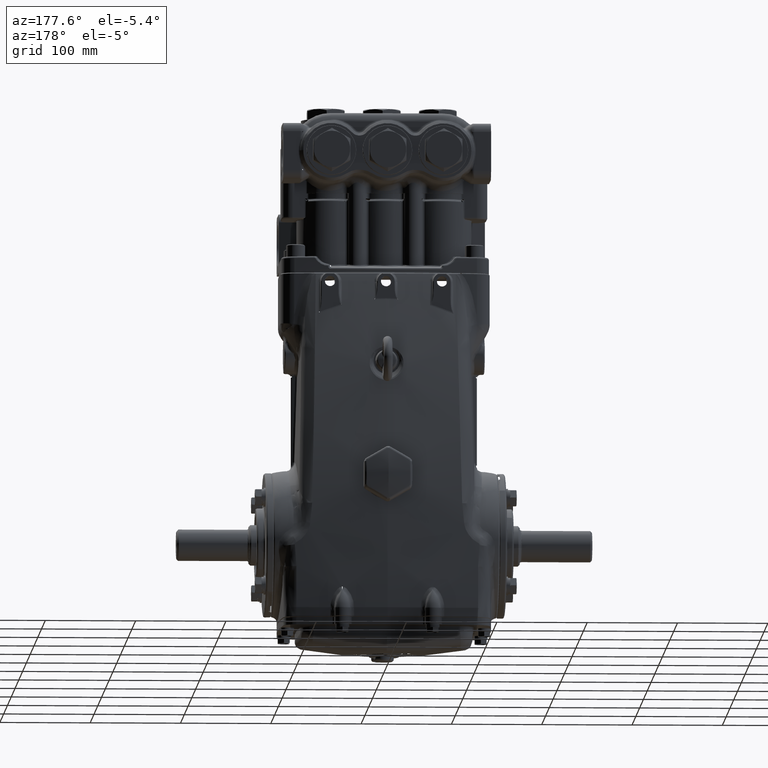
[diagram: clean part render]
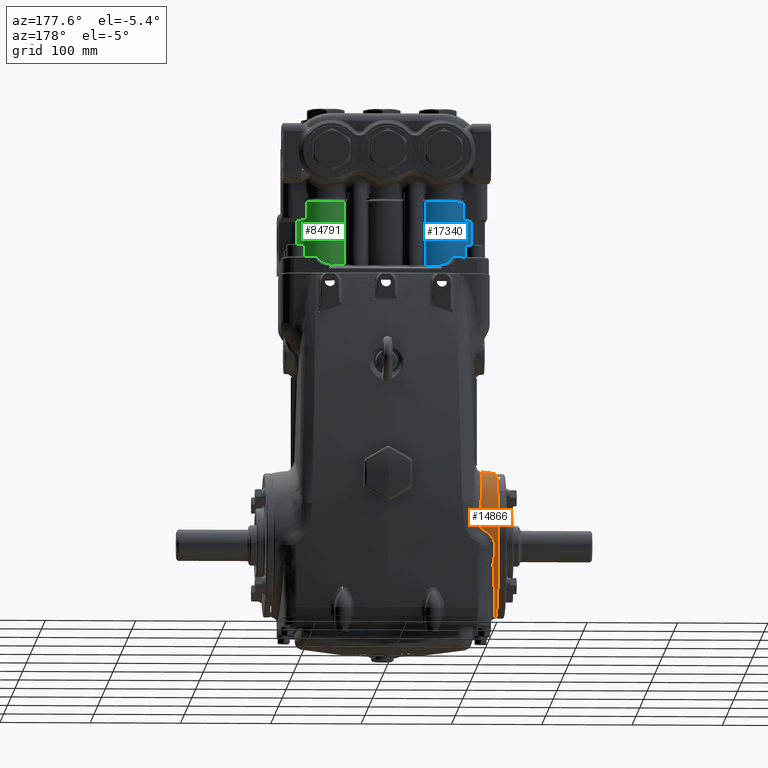
[diagram: same view with three faces highlighted in distinct colors, each labeled with its STEP entity id]
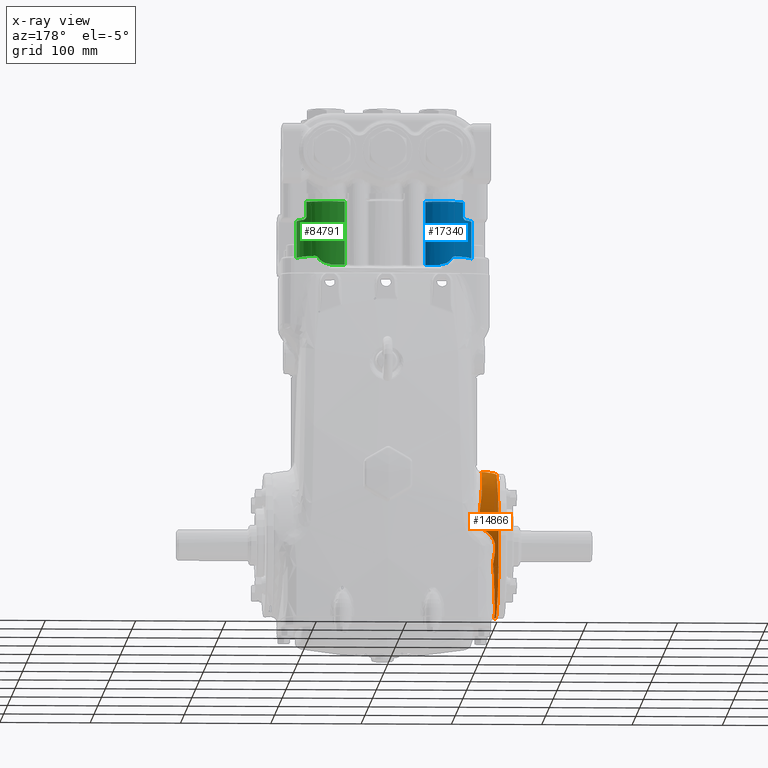
[diagram: x-ray of the same camera — body ghosted, the three highlighted faces saturated]
A machine part, auxiliary view with three faces highlighted in distinct colors.
The next image is the same camera in x-ray (body ghosted, the three faces saturated) — at least one of them is partly hidden behind the body in this view.
Their STEP definitions:

[orange] entity #14866 — the highlighted toroidal blend (fillet) surface has major radius 710.174 mm and minor (blend) radius 800 mm.
#126 = CARTESIAN_POINT ( 'NONE',  ( -4.096280338324226555, 2.904665353719471987, 1.504736247358023249 ) ) ;
#308 = CARTESIAN_POINT ( 'NONE',  ( -4.643925203085364828, 3.042650323329321171, -0.9659152903292752557 ) ) ;
#823 = CARTESIAN_POINT ( 'NONE',  ( -4.060649463394509162, 3.036719413738879769, 1.222611771821872528 ) ) ;
#967 = CARTESIAN_POINT ( 'NONE',  ( -4.633202648746894248, 2.987906131833676149, -1.128746862726888178 ) ) ;
#1480 = CARTESIAN_POINT ( 'NONE',  ( -4.067518039496773596, 3.097246644296904883, 1.057219212113420514 ) ) ;
#2491 = VERTEX_POINT ( 'NONE', #104081 ) ;
#3202 = VERTEX_POINT ( 'NONE', #68324 ) ;
#5857 = CARTESIAN_POINT ( 'NONE',  ( -4.874534027504089373, 0.0000000000000000000, -3.156962035488048102 ) ) ;
#6377 = CARTESIAN_POINT ( 'NONE',  ( -4.715495963174389793, 2.341534404476522724, -2.153863483351253549 ) ) ;
#6467 = CARTESIAN_POINT ( 'NONE',  ( -4.237937341650102496, 0.4666688453369636225, 3.218573893900623428 ) ) ;
#6508 = AXIS2_PLACEMENT_3D ( 'NONE', #33258, #73968, #114658 ) ;
#6656 = CARTESIAN_POINT ( 'NONE',  ( -4.511779959659552475, 3.206226003355470588, 0.1866642065185905863 ) ) ;
#7034 = CARTESIAN_POINT ( 'NONE',  ( -4.758313658058396456, 1.749338634837009465, -2.649703809987817849 ) ) ;
#7120 = CARTESIAN_POINT ( 'NONE',  ( -4.209779012964548706, 1.505329183135394544, 2.884724071112845234 ) ) ;
#7314 = CARTESIAN_POINT ( 'NONE',  ( -4.707478768105782585, 3.176785799462264137, -0.2060037105546783098 ) ) ;
#7694 = CARTESIAN_POINT ( 'NONE',  ( -4.772504795427527036, 1.509365373471758920, -2.795164167902850938 ) ) ;
#7783 = CARTESIAN_POINT ( 'NONE',  ( -4.181816419220242942, 2.102475916431841618, 2.488299285340437983 ) ) ;
#8322 = CARTESIAN_POINT ( 'NONE',  ( -4.718949966771314841, 3.163181307671568465, -0.3420644485147501523 ) ) ;
#8355 = CARTESIAN_POINT ( 'NONE',  ( -4.799524066274955203, 0.8551085311602437677, -3.051056169312085675 ) ) ;
#8998 = CARTESIAN_POINT ( 'NONE',  ( -4.687354046186608336, 3.102565975567542989, -0.7230639823669762212 ) ) ;
#9352 = CARTESIAN_POINT ( 'NONE',  ( -4.186148826015539726, 3.230282863534385207, 0.4177282841758522824 ) ) ;
#9657 = CARTESIAN_POINT ( 'NONE',  ( -4.667220439164643686, 3.078077342255525206, -0.8327364127504113256 ) ) ;
#9716 = CARTESIAN_POINT ( 'NONE',  ( -4.655392872214228817, 2.923354228967182333, -1.285024907199356692 ) ) ;
#10031 = DIRECTION ( 'NONE',  ( 0.0000000000000000000, 1.224646799147353207E-16, 1.000000000000000000 ) ) ;
#10133 = CARTESIAN_POINT ( 'NONE',  ( -4.126408329044968681, 2.796086372542307075, 1.685817952120126639 ) ) ;
#10316 = CARTESIAN_POINT ( 'NONE',  ( -4.647373880086534292, 3.048817741666649539, -0.9442737949156236876 ) ) ;
#10844 = CARTESIAN_POINT ( 'NONE',  ( -4.060588998366524649, 3.026121350726084014, 1.248690024777530994 ) ) ;
#10932 = CARTESIAN_POINT ( 'NONE',  ( -2.731847993664263218E-15, 0.0000000000000000000, 0.0000000000000000000 ) ) ;
#10989 = CARTESIAN_POINT ( 'NONE',  ( -4.634450989300444412, 3.014869449613513552, -1.053469424443866043 ) ) ;
#11494 = CARTESIAN_POINT ( 'NONE',  ( -4.065797341743982329, 3.085842093108770889, 1.090750359027990557 ) ) ;
#11839 = AXIS2_PLACEMENT_3D ( 'NONE', #60746, #101466, #10031 ) ;
#12139 = CARTESIAN_POINT ( 'NONE',  ( -4.072290178920226822, 3.193926241206049621, 0.7127005550974006010 ) ) ;
#14866 = ADVANCED_FACE ( 'NONE', ( #20921 ), #118173, .T. ) ;
#16380 = CARTESIAN_POINT ( 'NONE',  ( -4.711424708848597653, 2.390328644997696372, -2.100572970612545554 ) ) ;
#16464 = CARTESIAN_POINT ( 'NONE',  ( -4.240686318708529967, 0.1427758200717517134, 3.246654892570338458 ) ) ;
#16655 = CARTESIAN_POINT ( 'NONE',  ( -4.417987023484300835, 3.213153585340496221, 0.2768641273386435731 ) ) ;
#17041 = CARTESIAN_POINT ( 'NONE',  ( -4.742437194682087132, 1.988780080770411018, -2.479019071591010981 ) ) ;
#17114 = CARTESIAN_POINT ( 'NONE',  ( -4.812441923013380141, -1.483643769782659426E-06, -3.166625558008624886 ) ) ;
#17135 = CARTESIAN_POINT ( 'NONE',  ( -4.211340675411272549, 1.466424477580555941, 2.904437946695121120 ) ) ;
#17322 = CARTESIAN_POINT ( 'NONE',  ( -4.654287345790805830, 3.190485518470921100, -0.03772327638319619009 ) ) ;
#17706 = CARTESIAN_POINT ( 'NONE',  ( -4.764625276935066545, 1.644875180666448111, -2.714505575616777744 ) ) ;
#17794 = CARTESIAN_POINT ( 'NONE',  ( -4.182424207421814089, 2.090860159687160102, 2.497952975795239006 ) ) ;
#18362 = CARTESIAN_POINT ( 'NONE',  ( -4.799348568656832903, 0.8608985913561291170, -3.049456571740273514 ) ) ;
#18449 = CARTESIAN_POINT ( 'NONE',  ( -4.154194953984836403, 2.605897780206630987, 1.960951467905414525 ) ) ;
#18677 = CARTESIAN_POINT ( 'NONE',  ( -4.068200303526625206, 3.204746600826735126, 0.6630299790286307005 ) ) ;
#18992 = CARTESIAN_POINT ( 'NONE',  ( -4.688032192481906613, 3.103385253011131439, -0.7190895948247202352 ) ) ;
#19341 = CARTESIAN_POINT ( 'NONE',  ( -4.110864057340496203, 3.228151902489282410, 0.5025030673295376449 ) ) ;
#19498 = ORIENTED_EDGE ( 'NONE', *, *, #122064, .T. ) ;
#19657 = CARTESIAN_POINT ( 'NONE',  ( -4.669114370948201476, 3.080493680371853671, -0.8226656118114643590 ) ) ;
#20139 = CARTESIAN_POINT ( 'NONE',  ( -4.127112141118856492, 2.793115142972120601, 1.690558321221252935 ) ) ;
#20317 = CARTESIAN_POINT ( 'NONE',  ( -4.647790478721005591, 3.049556969106494542, -0.9416738267458258926 ) ) ;
#20834 = CARTESIAN_POINT ( 'NONE',  ( -4.062205402962512757, 3.004103549892345182, 1.300282933183972034 ) ) ;
#20921 = FACE_OUTER_BOUND ( 'NONE', #65321, .T. ) ;
#20972 = CARTESIAN_POINT ( 'NONE',  ( -4.634630652145853347, 3.015844245340256968, -1.050595136712090261 ) ) ;
#21496 = CARTESIAN_POINT ( 'NONE',  ( -4.061640678879331112, 3.053099380401181229, 1.181191259637637270 ) ) ;
#21591 = EDGE_CURVE ( 'NONE', #105872, #84421, #52769, .T. ) ;
#22153 = CARTESIAN_POINT ( 'NONE',  ( -4.072521757522702401, 3.128117435498546595, 0.9630082769759731320 ) ) ;
#26398 = CARTESIAN_POINT ( 'NONE',  ( -4.698683244177709994, 2.537701862296204425, -1.924731974841775717 ) ) ;
#26486 = CARTESIAN_POINT ( 'NONE',  ( -4.240991409181451566, 0.02829054064660479692, 3.249621479620339759 ) ) ;
#26540 = EDGE_CURVE ( 'NONE', #118349, #3202, #126873, .T. ) ;
#26666 = CARTESIAN_POINT ( 'NONE',  ( -4.397186821826109870, 3.214622024187163696, 0.2936614195985500220 ) ) ;
#26968 = EDGE_CURVE ( 'NONE', #44916, #121214, #41735, .T. ) ;
#27044 = CARTESIAN_POINT ( 'NONE',  ( -4.723375241428365179, 2.245468073664622644, -2.254282922854854654 ) ) ;
#27133 = CARTESIAN_POINT ( 'NONE',  ( -4.211605221329781656, 1.459712636566402599, 2.907775198027923391 ) ) ;
#27322 = CARTESIAN_POINT ( 'NONE',  ( -4.606960692279701064, 3.197344500046657156, 0.05734295969434103496 ) ) ;
#27701 = CARTESIAN_POINT ( 'NONE',  ( -4.764417987686476508, 1.648433592098015543, -2.712383873672699064 ) ) ;
#27797 = CARTESIAN_POINT ( 'NONE',  ( -4.189190983256752432, 1.958735077367343314, 2.602774756868502237 ) ) ;
#27974 = B_SPLINE_CURVE_WITH_KNOTS ( 'NONE', 3,
 ( #30853, #71562, #112239, #20834, #61545, #102265, #10844, #51527, #92253, #823, #41521, #82230, #122911, #31497, #72217, #112905, #21496, #62201, #102925, #11494, #52174, #92895, #1480, #42171, #82881, #123566, #32168, #72870, #113555, #22153, #62855, #103571, #12139, #52822 ),
 .UNSPECIFIED., .F., .F.,
 ( 4, 2, 2, 1, 1, 1, 1, 1, 1, 2, 2, 2, 2, 2, 1, 1, 1, 1, 2, 2, 2, 4 ),
 ( 0.0000000000000000000, 0.1249999999999765188, 0.1874999999999648337, 0.2187499999999585887, 0.2343749999999550915, 0.2421874999999529821, 0.2460937499999513722, 0.2480468749999507894, 0.2490234374999505118, 0.2495117187499497902, 0.2499999999999490963, 0.3749999999999541478, 0.4374999999999566458, 0.4687499999999580336, 0.4843749999999586442, 0.4921874999999587552, 0.4960937499999590883, 0.4980468749999593103, 0.4990234374999591438, 0.4999999999999590328, 0.7499999999999795719, 1.000000000000000000 ),
 .UNSPECIFIED. ) ;
#28365 = CARTESIAN_POINT ( 'NONE',  ( -4.797843095949712477, 0.9092048436318075355, -3.035723445469324933 ) ) ;
#28457 = CARTESIAN_POINT ( 'NONE',  ( -4.168031201832947730, 2.358709150963936185, 2.250419717699980282 ) ) ;
#28997 = CARTESIAN_POINT ( 'NONE',  ( -4.693224141703741914, 3.109767864790992764, -0.6874893449112643440 ) ) ;
#29342 = CARTESIAN_POINT ( 'NONE',  ( -4.104774153404586734, 3.227468512413511625, 0.5120292752812040105 ) ) ;
#29664 = CARTESIAN_POINT ( 'NONE',  ( -4.676137898167103124, 3.089221795566293505, -0.7850670337349557881 ) ) ;
#30159 = CARTESIAN_POINT ( 'NONE',  ( -4.132586612445548369, 2.768810050746975282, 1.728819305921614591 ) ) ;
#30341 = CARTESIAN_POINT ( 'NONE',  ( -4.650305141355814520, 3.053837608234353684, -0.9264143642954951741 ) ) ;
#30853 = CARTESIAN_POINT ( 'NONE',  ( -4.073807283106575028, 2.959955667553678893, 1.394234154907067369 ) ) ;
#30995 = CARTESIAN_POINT ( 'NONE',  ( -4.635873131140050951, 3.021321905678378883, -1.034174722359415322 ) ) ;
#31210 = DIRECTION ( 'NONE',  ( 0.0000000000000000000, 0.0000000000000000000, -1.000000000000000000 ) ) ;
#31497 = CARTESIAN_POINT ( 'NONE',  ( -4.060690636429155731, 3.038132567043548171, 1.219080569080521093 ) ) ;
#32168 = CARTESIAN_POINT ( 'NONE',  ( -4.068472128407783828, 3.103218691282044972, 1.039139869730006493 ) ) ;
#33258 = CARTESIAN_POINT ( 'NONE',  ( -4.874534027504088485, 0.0000000000000000000, 4.945856143601376801E-16 ) ) ;
#35541 = ORIENTED_EDGE ( 'NONE', *, *, #21591, .T. ) ;
#36408 = CARTESIAN_POINT ( 'NONE',  ( -4.683430408163863135, 2.701634298173186455, -1.690395597115273985 ) ) ;
#36679 = CARTESIAN_POINT ( 'NONE',  ( -4.350307036733443766, 3.217929832169827087, 0.3278665764670546379 ) ) ;
#37057 = CARTESIAN_POINT ( 'NONE',  ( -4.717589957522975830, 2.316087719481910057, -2.180689669581934442 ) ) ;
#37149 = CARTESIAN_POINT ( 'NONE',  ( -4.220826247673924669, 1.208398392037944191, 3.022436128811769152 ) ) ;
#37336 = CARTESIAN_POINT ( 'NONE',  ( -4.556716753946008502, 3.202404114247054512, 0.1313652778082986528 ) ) ;
#37710 = CARTESIAN_POINT ( 'NONE',  ( -4.763233705948388241, 1.668563542145169887, -2.700266167151289753 ) ) ;
#37802 = CARTESIAN_POINT ( 'NONE',  ( -4.202618106653496000, 1.673424365633090716, 2.792380330007606659 ) ) ;
#38373 = CARTESIAN_POINT ( 'NONE',  ( -4.794312616797400395, 1.013066599493596787, -3.003349883579779167 ) ) ;
#38462 = CARTESIAN_POINT ( 'NONE',  ( -4.176290951663232498, 2.206861225430909457, 2.397505253174283535 ) ) ;
#38998 = CARTESIAN_POINT ( 'NONE',  ( -4.702604789657244488, 3.122155978892150685, -0.6218021552101953286 ) ) ;
#39031 = CARTESIAN_POINT ( 'NONE',  ( -4.812441865951741171, 0.1405687677117224144, -3.166625632652416922 ) ) ;
#39355 = CARTESIAN_POINT ( 'NONE',  ( -4.084083455364799775, 3.223547990076196079, 0.5525942428601540168 ) ) ;
#39661 = CARTESIAN_POINT ( 'NONE',  ( -4.685647947006665426, 3.100509618030842685, -0.7330108302683622234 ) ) ;
#40153 = CARTESIAN_POINT ( 'NONE',  ( -4.142279940224504742, 2.717042258368078667, 1.806882848541122577 ) ) ;
#40339 = CARTESIAN_POINT ( 'NONE',  ( -4.658744023977678950, 3.066781797780099961, -0.8782455666333535138 ) ) ;
#40455 = B_SPLINE_CURVE_WITH_KNOTS ( 'NONE', 3,
 ( #46406, #87123, #127800, #36408, #77112, #117804, #26398, #67097, #107795, #16380, #57060, #97799, #6377, #47054, #87788, #128456, #37057, #77765, #118449, #27044, #67745, #108438, #17041, #57722, #98461, #7034, #47715, #88444, #129101, #37710, #78425, #119108, #27701, #68415, #109100, #17706, #58400, #99125, #7694, #48377, #89099, #129758, #38373, #79087, #119777, #28365, #69075, #109772, #18362, #59060, #99787, #8355, #49054, #89775, #130425, #39031, #79747 ),
 .UNSPECIFIED., .F., .F.,
 ( 4, 2, 2, 2, 2, 2, 1, 1, 1, 1, 2, 2, 2, 2, 2, 2, 2, 1, 1, 1, 1, 1, 2, 2, 2, 2, 2, 1, 1, 1, 1, 2, 2, 2, 4 ),
 ( 0.0000000000000000000, 0.03125311318571629554, 0.06250622637143259108, 0.09375933955714889356, 0.1093858961500070032, 0.1171991744464360719, 0.1211058135946505854, 0.1230591331687579115, 0.1240357929558115885, 0.1245241228493384478, 0.1247682877961018427, 0.1250124527428652099, 0.1562655659285787368, 0.1875186791142922638, 0.2187717923000057907, 0.2343983488928624570, 0.2422116271892908734, 0.2461182663375050816, 0.2480715859116121580, 0.2490482456986656545, 0.2495365755921922779, 0.2497807405389556035, 0.2499028230123371275, 0.2500249054857186515, 0.3125311318570550556, 0.3437842450427233132, 0.3594108016355573865, 0.3672240799319744786, 0.3711307190801830802, 0.3730840386542873532, 0.3740606984413394898, 0.3745490283348654748, 0.3750373582283915153, 0.4375435845997214801, 0.5000498109710513894 ),
 .UNSPECIFIED. ) ;
#40648 = B_SPLINE_CURVE_WITH_KNOTS ( 'NONE', 3,
 ( #101151, #9716, #50407, #91132 ),
 .UNSPECIFIED., .F., .F.,
 ( 4, 4 ),
 ( 0.0000000000000000000, 1.000000000000000000 ),
 .UNSPECIFIED. ) ;
#40825 = CARTESIAN_POINT ( 'NONE',  ( -4.073807283106575028, 2.959955667553678893, 1.394234154907067369 ) ) ;
#41002 = CARTESIAN_POINT ( 'NONE',  ( -4.641161413697816762, 3.036739050912720117, -0.9856143735910870562 ) ) ;
#41521 = CARTESIAN_POINT ( 'NONE',  ( -4.060670670025836593, 3.037480144168240859, 1.220712446222050662 ) ) ;
#41619 = B_SPLINE_CURVE_WITH_KNOTS ( 'NONE', 3,
 ( #18677, #49380, #90095, #130747, #39355, #80066, #120749, #29342, #70054, #110746, #19341, #60053, #100785, #9352, #50041 ),
 .UNSPECIFIED., .F., .F.,
 ( 4, 2, 2, 1, 1, 1, 2, 2, 4 ),
 ( 0.0000000000000000000, 0.2499999999999552025, 0.3749999999999322209, 0.4374999999999206746, 0.4687499999999150679, 0.4843749999999132916, 0.4921874999999137357, 0.4999999999999141798, 1.000000000000000000 ),
 .UNSPECIFIED. ) ;
#41662 = CARTESIAN_POINT ( 'NONE',  ( -4.637802544244244984, 2.974521444932946235, -1.161151241241906051 ) ) ;
#41735 = CIRCLE ( 'NONE', #116311, 31.49606299212598515 ) ;
#42171 = CARTESIAN_POINT ( 'NONE',  ( -4.068025243754767040, 3.100444825898950096, 1.047576137881565117 ) ) ;
#42363 = VERTEX_POINT ( 'NONE', #96861 ) ;
#44084 = ORIENTED_EDGE ( 'NONE', *, *, #113783, .T. ) ;
#44916 = VERTEX_POINT ( 'NONE', #5857 ) ;
#46406 = CARTESIAN_POINT ( 'NONE',  ( -4.671994797260747845, 2.817599287592787771, -1.491502570683553408 ) ) ;
#46674 = CARTESIAN_POINT ( 'NONE',  ( -4.241298004304445257, 3.226000655407923912, 0.3907540742130110600 ) ) ;
#47054 = CARTESIAN_POINT ( 'NONE',  ( -4.716619429066391866, 2.327906455178991862, -2.168297233718784689 ) ) ;
#47146 = CARTESIAN_POINT ( 'NONE',  ( -4.236104258452003890, 0.5879713359873277589, 3.199139847572507911 ) ) ;
#47328 = CARTESIAN_POINT ( 'NONE',  ( -4.523483147003783955, 3.205284496424921414, 0.1732206657350554291 ) ) ;
#47715 = CARTESIAN_POINT ( 'NONE',  ( -4.759732723984808622, 1.726496530009379082, -2.664350123377031032 ) ) ;
#47804 = CARTESIAN_POINT ( 'NONE',  ( -4.208540778272051419, 1.535507018643274435, 2.869031103639957170 ) ) ;
#47991 = CARTESIAN_POINT ( 'NONE',  ( -4.713410149019337858, 3.169753052427448203, -0.2763368758280543847 ) ) ;
#48377 = CARTESIAN_POINT ( 'NONE',  ( -4.779332873788414204, 1.374437189907673273, -2.862059335705383845 ) ) ;
#48469 = CARTESIAN_POINT ( 'NONE',  ( -4.181113014844834552, 2.115889190610132253, 2.477053726652969079 ) ) ;
#49013 = CARTESIAN_POINT ( 'NONE',  ( -4.719540509578000531, 3.154915213107856164, -0.4122929287186804514 ) ) ;
#49054 = CARTESIAN_POINT ( 'NONE',  ( -4.803852467295594231, 0.7116834956764080955, -3.090504072778696987 ) ) ;
#49380 = CARTESIAN_POINT ( 'NONE',  ( -4.065840728061390408, 3.210993378081472560, 0.6343532972537651027 ) ) ;
#49397 = ORIENTED_EDGE ( 'NONE', *, *, #65142, .T. ) ;
#49645 = VERTEX_POINT ( 'NONE', #73437 ) ;
#49688 = CARTESIAN_POINT ( 'NONE',  ( -4.687312314538300662, 3.102515657681125028, -0.7233074892485588103 ) ) ;
#50041 = CARTESIAN_POINT ( 'NONE',  ( -4.241298004304445257, 3.226000655407923912, 0.3907540742130110600 ) ) ;
#50142 = VERTEX_POINT ( 'NONE', #128530 ) ;
#50174 = CARTESIAN_POINT ( 'NONE',  ( -4.154194953984836403, 2.605897780206630987, 1.960951467905414525 ) ) ;
#50348 = CARTESIAN_POINT ( 'NONE',  ( -4.667059506843767913, 3.077870945339407083, -0.8335911977568878362 ) ) ;
#50407 = CARTESIAN_POINT ( 'NONE',  ( -4.666789276603434011, 2.869728011511237575, -1.394695065939464351 ) ) ;
#50826 = CARTESIAN_POINT ( 'NONE',  ( -4.126339195425622108, 2.796376527518634525, 1.685354288209334639 ) ) ;
#51004 = CARTESIAN_POINT ( 'NONE',  ( -4.647339634157449773, 3.048756602665818161, -0.9444884395169841351 ) ) ;
#51527 = CARTESIAN_POINT ( 'NONE',  ( -4.060569509154871248, 3.032165111257359325, 1.233905175712355362 ) ) ;
#51609 = DIRECTION ( 'NONE',  ( 1.000000000000000000, -0.0000000000000000000, -1.014631576207059362E-16 ) ) ;
#51668 = CARTESIAN_POINT ( 'NONE',  ( -4.634440606442751687, 3.014811411861998192, -1.053640205914663008 ) ) ;
#52174 = CARTESIAN_POINT ( 'NONE',  ( -4.066298665785098798, 3.089266302009400889, 1.080826094015146177 ) ) ;
#52281 = ORIENTED_EDGE ( 'NONE', *, *, #52448, .T. ) ;
#52448 = EDGE_CURVE ( 'NONE', #49645, #121214, #40455, .T. ) ;
#52769 = B_SPLINE_CURVE_WITH_KNOTS ( 'NONE', 3,
 ( #99753, #8322, #49013, #89744, #130395, #38998, #79716, #120402, #28997, #69703, #110396, #18992, #59694, #100423, #8998, #49688, #90408, #131059, #39661, #80374, #121060, #29664, #70369, #111067, #19657, #60369, #101089, #9657, #50348, #91066, #131726, #40339, #81050, #121732, #30341, #71039, #111732, #20317, #61024, #101735, #10316, #51004, #91736, #308, #41002, #81711, #122395, #30995, #71697, #112375, #20972, #61676, #102404, #10989, #51668, #92394, #967, #41662 ),
 .UNSPECIFIED., .F., .F.,
 ( 4, 2, 2, 2, 1, 1, 1, 1, 1, 1, 1, 2, 2, 2, 2, 1, 1, 1, 1, 2, 2, 2, 2, 1, 1, 1, 1, 1, 2, 2, 2, 2, 1, 1, 1, 1, 2, 2, 4 ),
 ( 0.0000000000000000000, 0.2499999999998876454, 0.3749999999998314126, 0.4374999999998031019, 0.4687499999997888911, 0.4843749999997816191, 0.4921874999997777889, 0.4960937499997757905, 0.4980468749997747357, 0.4990234374997741806, 0.4995117187497737365, 0.4997558593747732925, 0.4999999999997728484, 0.5624999999997337685, 0.5937499999997141176, 0.6093749999997041256, 0.6171874999996993516, 0.6210937499996969091, 0.6230468749996955768, 0.6240234374996951328, 0.6249999999996946887, 0.6874999999996814770, 0.7187499999996751487, 0.7343749999996719291, 0.7421874999996701527, 0.7460937499996690425, 0.7480468749996684874, 0.7490234374996681543, 0.7495117187496684874, 0.7499999999996688205, 0.8124999999997720712, 0.8437499999998234745, 0.8593749999998497868, 0.8671874999998627764, 0.8710937499998694378, 0.8730468749998722133, 0.8740234374998733236, 0.8749999999998744338, 1.000000000000000000 ),
 .UNSPECIFIED. ) ;
#52822 = CARTESIAN_POINT ( 'NONE',  ( -4.068200303526625206, 3.204746600826735126, 0.6630299790286307005 ) ) ;
#57060 = CARTESIAN_POINT ( 'NONE',  ( -4.712659892498009206, 2.375626968222384949, -2.116911112170181131 ) ) ;
#57151 = CARTESIAN_POINT ( 'NONE',  ( -4.240228305173727286, 0.2297979854777702502, 3.242110647552720160 ) ) ;
#57338 = CARTESIAN_POINT ( 'NONE',  ( -4.449289446077417054, 3.210934168277634448, 0.2506529986586616965 ) ) ;
#57722 = CARTESIAN_POINT ( 'NONE',  ( -4.750254788205690026, 1.874554800852576975, -2.565005768069354541 ) ) ;
#57815 = CARTESIAN_POINT ( 'NONE',  ( -4.211025483433735062, 1.474377967702478642, 2.900462298901600899 ) ) ;
#58007 = CARTESIAN_POINT ( 'NONE',  ( -4.660993397047885622, 3.189250702800486170, -0.05404280267340488830 ) ) ;
#58400 = CARTESIAN_POINT ( 'NONE',  ( -4.764642457934063380, 1.644579829930432613, -2.714681449450699890 ) ) ;
#58486 = CARTESIAN_POINT ( 'NONE',  ( -4.182322626664320531, 2.092803026198815530, 2.496343212924442501 ) ) ;
#59060 = CARTESIAN_POINT ( 'NONE',  ( -4.799437959627123718, 0.8579527036116665339, -3.050271356682671353 ) ) ;
#59694 = CARTESIAN_POINT ( 'NONE',  ( -4.687645473598392343, 3.102917684149256949, -0.7213600123980212775 ) ) ;
#60053 = CARTESIAN_POINT ( 'NONE',  ( -4.111431585664414357, 3.228209264101131293, 0.5016479586485136366 ) ) ;
#60369 = CARTESIAN_POINT ( 'NONE',  ( -4.668018346718151079, 3.079098323096850720, -0.8284963074493799651 ) ) ;
#60679 = AXIS2_PLACEMENT_3D ( 'NONE', #10932, #51609, #92341 ) ;
#60746 = CARTESIAN_POINT ( 'NONE',  ( -5.568718060300463558E-15, -3.424064387676790698E-15, -27.95960753795100473 ) ) ;
#60851 = CARTESIAN_POINT ( 'NONE',  ( -4.126702464456719177, 2.794848501333184299, 1.687794566716130706 ) ) ;
#61024 = CARTESIAN_POINT ( 'NONE',  ( -4.647546133545997549, 3.049124446143233413, -0.9431961791801340977 ) ) ;
#61545 = CARTESIAN_POINT ( 'NONE',  ( -4.061442002277554586, 3.010797124649145395, 1.284978783540849490 ) ) ;
#61676 = CARTESIAN_POINT ( 'NONE',  ( -4.634524355979860566, 3.015274912597994295, -1.052275391091169743 ) ) ;
#62201 = CARTESIAN_POINT ( 'NONE',  ( -4.063604080515749395, 3.069791716440971818, 1.136029323460480578 ) ) ;
#62855 = CARTESIAN_POINT ( 'NONE',  ( -4.074479774735314308, 3.147917384622693326, 0.8941224154448853545 ) ) ;
#62937 = CARTESIAN_POINT ( 'NONE',  ( -4.874534027504088485, 3.866163451790151959E-16, 3.156962035488049434 ) ) ;
#64064 = CIRCLE ( 'NONE', #6508, 3.156962035488045437 ) ;
#65142 = EDGE_CURVE ( 'NONE', #84421, #49645, #40648, .T. ) ;
#65321 = EDGE_LOOP ( 'NONE', ( #121845, #117216, #19498, #70311, #84517, #44084, #88640, #35541, #49397, #52281, #99856 ) ) ;
#66613 = EDGE_CURVE ( 'NONE', #44916, #118349, #64064, .T. ) ;
#67097 = CARTESIAN_POINT ( 'NONE',  ( -4.705443912580073551, 2.460462718559939255, -2.019691177571926399 ) ) ;
#67180 = CARTESIAN_POINT ( 'NONE',  ( -4.240953334966198973, 0.05668292496124047869, 3.249258510206218808 ) ) ;
#67353 = CARTESIAN_POINT ( 'NONE',  ( -4.407652848613972552, 3.213883866361708197, 0.2852961244722243550 ) ) ;
#67745 = CARTESIAN_POINT ( 'NONE',  ( -4.728569116195684430, 2.178324289510480849, -2.317597206545339183 ) ) ;
#67835 = CARTESIAN_POINT ( 'NONE',  ( -4.211561456518189139, 1.460825144298188771, 2.907223057753597573 ) ) ;
#68028 = CARTESIAN_POINT ( 'NONE',  ( -4.631961125586597561, 3.194016852631057723, 0.01042872530092255057 ) ) ;
#68324 = CARTESIAN_POINT ( 'NONE',  ( -4.240991282790827377, 4.564405169455413455E-14, 3.249621495888693534 ) ) ;
#68415 = CARTESIAN_POINT ( 'NONE',  ( -4.764539169395844986, 1.646354510089773182, -2.713624174705099090 ) ) ;
#68507 = CARTESIAN_POINT ( 'NONE',  ( -4.185988274675155552, 2.022647832414890434, 2.554336630853033974 ) ) ;
#69075 = CARTESIAN_POINT ( 'NONE',  ( -4.798713747854339573, 0.8815580754054231916, -3.043668421738258356 ) ) ;
#69169 = CARTESIAN_POINT ( 'NONE',  ( -4.160948370523017914, 2.485929650389656409, 2.113262575487194539 ) ) ;
#69703 = CARTESIAN_POINT ( 'NONE',  ( -4.690308082278538571, 3.106157817435942103, -0.7055041571669017353 ) ) ;
#70054 = CARTESIAN_POINT ( 'NONE',  ( -4.108279912502661446, 3.227877772341144258, 0.5064635244392037272 ) ) ;
#70311 = ORIENTED_EDGE ( 'NONE', *, *, #115991, .T. ) ;
#70369 = CARTESIAN_POINT ( 'NONE',  ( -4.672923879902360689, 3.085266884929058318, -0.8023217581850503599 ) ) ;
#70858 = CARTESIAN_POINT ( 'NONE',  ( -4.129518000186591209, 2.782706995776219383, 1.707054378561656538 ) ) ;
#71039 = CARTESIAN_POINT ( 'NONE',  ( -4.649334226890559307, 3.052227528950085311, -0.9322061596610313750 ) ) ;
#71562 = CARTESIAN_POINT ( 'NONE',  ( -4.068986836574376653, 2.971817446734348334, 1.370527188221691839 ) ) ;
#71626 = CARTESIAN_POINT ( 'NONE',  ( -4.637802544244244984, 2.974521444932946235, -1.161151241241906051 ) ) ;
#71697 = CARTESIAN_POINT ( 'NONE',  ( -4.635356945479838231, 3.019301196228806994, -1.040300789310913743 ) ) ;
#72217 = CARTESIAN_POINT ( 'NONE',  ( -4.060693367735672688, 3.038217779892032677, 1.218867223457421600 ) ) ;
#72870 = CARTESIAN_POINT ( 'NONE',  ( -4.068509853299905110, 3.103451117388512870, 1.038430022731234859 ) ) ;
#73437 = CARTESIAN_POINT ( 'NONE',  ( -4.671994797260747845, 2.817599287592787771, -1.491502570683553408 ) ) ;
#73968 = DIRECTION ( 'NONE',  ( 1.000000000000000000, -0.0000000000000000000, -1.014631576207051350E-16 ) ) ;
#77112 = CARTESIAN_POINT ( 'NONE',  ( -4.686896633908743226, 2.665530621674756961, -1.746205885232524402 ) ) ;
#77387 = CARTESIAN_POINT ( 'NONE',  ( -4.364994736599185465, 3.216890663559647923, 0.3176943694298491883 ) ) ;
#77420 = CARTESIAN_POINT ( 'NONE',  ( -4.713410149019337858, 3.169753052427448203, -0.2763368758280543847 ) ) ;
#77765 = CARTESIAN_POINT ( 'NONE',  ( -4.717671136564600687, 2.315097310291981625, -2.181723162825993878 ) ) ;
#77856 = CARTESIAN_POINT ( 'NONE',  ( -4.216548039107368417, 1.333862886328504249, 2.970133266067845668 ) ) ;
#78035 = CARTESIAN_POINT ( 'NONE',  ( -4.561969227766507373, 3.201919147311642178, 0.1242613619186474228 ) ) ;
#78425 = CARTESIAN_POINT ( 'NONE',  ( -4.763675530139307668, 1.661102790233410564, -2.704786806589696724 ) ) ;
#78517 = CARTESIAN_POINT ( 'NONE',  ( -4.197764519733664379, 1.780128488656253616, 2.726376967030726739 ) ) ;
#79087 = CARTESIAN_POINT ( 'NONE',  ( -4.795450030175883782, 0.9809122713442132158, -3.013811345509747497 ) ) ;
#79182 = CARTESIAN_POINT ( 'NONE',  ( -4.174830265929363016, 2.234039248338217210, 2.372433046703318560 ) ) ;
#79716 = CARTESIAN_POINT ( 'NONE',  ( -4.699968347651049427, 3.118516502551762937, -0.6418015342040015447 ) ) ;
#79747 = CARTESIAN_POINT ( 'NONE',  ( -4.812441923013380141, -1.483643769782659426E-06, -3.166625558008624886 ) ) ;
#80066 = CARTESIAN_POINT ( 'NONE',  ( -4.093165184920723121, 3.225625657109164823, 0.5329661748473996097 ) ) ;
#80374 = CARTESIAN_POINT ( 'NONE',  ( -4.683147111307042643, 3.097608457130101467, -0.7469609030421748841 ) ) ;
#80867 = CARTESIAN_POINT ( 'NONE',  ( -4.139591045012609882, 2.732989114669878816, 1.783338659707518037 ) ) ;
#81050 = CARTESIAN_POINT ( 'NONE',  ( -4.653845877341892923, 3.059477005457208243, -0.9057961562457295113 ) ) ;
#81624 = VERTEX_POINT ( 'NONE', #82002 ) ;
#81711 = CARTESIAN_POINT ( 'NONE',  ( -4.637940582085658292, 3.028202304522158439, -1.012916883210215557 ) ) ;
#81935 = CARTESIAN_POINT ( 'NONE',  ( 1.050220729719372817E-16, 0.0000000000000000000, 27.95960753795100473 ) ) ;
#82002 = CARTESIAN_POINT ( 'NONE',  ( -4.068200303526625206, 3.204746600826735126, 0.6630299790286307005 ) ) ;
#82230 = CARTESIAN_POINT ( 'NONE',  ( -4.060682117725922247, 3.037860683432504594, 1.219760950701152868 ) ) ;
#82296 = EDGE_CURVE ( 'NONE', #50142, #105872, #107001, .T. ) ;
#82881 = CARTESIAN_POINT ( 'NONE',  ( -4.068284557955822223, 3.102059307751843686, 1.042674253447394062 ) ) ;
#84421 = VERTEX_POINT ( 'NONE', #71626 ) ;
#84517 = ORIENTED_EDGE ( 'NONE', *, *, #100374, .T. ) ;
#87123 = CARTESIAN_POINT ( 'NONE',  ( -4.674419873925382163, 2.793311763126516301, -1.536606663971731734 ) ) ;
#87398 = B_SPLINE_CURVE_WITH_KNOTS ( 'NONE', 3,
 ( #117893, #26486, #67180, #107877, #16464, #57151, #97887, #6467, #47146, #87874, #128541, #37149, #77856, #118535, #27133, #67835, #108531, #17135, #57815, #98551, #7120, #47804, #88536, #129192, #37802, #78517, #119193, #27797, #68507, #109188, #17794, #58486, #99216, #7783, #48469, #89193, #129847, #38462, #79182, #119872, #28457, #69169, #109858, #18449 ),
 .UNSPECIFIED., .F., .F.,
 ( 4, 2, 2, 2, 2, 2, 2, 2, 1, 1, 1, 1, 2, 2, 2, 2, 2, 2, 1, 1, 1, 1, 2, 2, 2, 4 ),
 ( 0.4998095448471048807, 0.5154404965706326225, 0.5310714482941604198, 0.5623333517412159033, 0.6248571586353269813, 0.6873809655294379484, 0.7499047724235490264, 0.7503932396649092285, 0.7508817069062694305, 0.7518586413889898346, 0.7538125103544307537, 0.7577202482853128140, 0.7655357241470769347, 0.7811666758706050651, 0.8124285793176613257, 0.8436904827647176974, 0.8749523862117739581, 0.8754408534531341601, 0.8759293206944944732, 0.8769062551772148772, 0.8788601241426559074, 0.8827678620735379678, 0.8905833379353020884, 0.9062142896588303298, 0.9374761931058868125, 1.000000000000000000 ),
 .UNSPECIFIED. ) ;
#87402 = CARTESIAN_POINT ( 'NONE',  ( -4.273934695335836587, 3.223466389223916817, 0.3747918640754936415 ) ) ;
#87788 = CARTESIAN_POINT ( 'NONE',  ( -4.717184718578559810, 2.321027756816163024, -2.175523902555401623 ) ) ;
#87874 = CARTESIAN_POINT ( 'NONE',  ( -4.231215602252240693, 0.8338266816018564676, 3.144717854230572485 ) ) ;
#88071 = CARTESIAN_POINT ( 'NONE',  ( -4.540375809063373680, 3.203853690509907537, 0.1525172019426031533 ) ) ;
#88444 = CARTESIAN_POINT ( 'NONE',  ( -4.761700742719797042, 1.694181793152122362, -2.684567901175132221 ) ) ;
#88536 = CARTESIAN_POINT ( 'NONE',  ( -4.207650640939227138, 1.556802062359595507, 2.857693013763739742 ) ) ;
#88640 = ORIENTED_EDGE ( 'NONE', *, *, #82296, .T. ) ;
#89099 = CARTESIAN_POINT ( 'NONE',  ( -4.788055986661514218, 1.175783542990256114, -2.945171316113561755 ) ) ;
#89193 = CARTESIAN_POINT ( 'NONE',  ( -4.179724592494904911, 2.142270490814027539, 2.454623124114609922 ) ) ;
#89744 = CARTESIAN_POINT ( 'NONE',  ( -4.713002603190037831, 3.138585436357359093, -0.5242061554179162641 ) ) ;
#89775 = CARTESIAN_POINT ( 'NONE',  ( -4.807073488771952618, 0.5684139183233889447, -3.119363334558183265 ) ) ;
#90095 = CARTESIAN_POINT ( 'NONE',  ( -4.068304483177183073, 3.216034579250465431, 0.6064597124523278815 ) ) ;
#90408 = CARTESIAN_POINT ( 'NONE',  ( -4.687284483995517448, 3.102482105390163447, -0.7234698350349969553 ) ) ;
#90891 = CARTESIAN_POINT ( 'NONE',  ( -4.152452471206441231, 2.637416720390434843, 1.919451715463281527 ) ) ;
#91066 = CARTESIAN_POINT ( 'NONE',  ( -4.666965849410340539, 3.077750727756393356, -0.8340885672653673977 ) ) ;
#91132 = CARTESIAN_POINT ( 'NONE',  ( -4.671994797260747845, 2.817599287592787771, -1.491502570683553408 ) ) ;
#91551 = CARTESIAN_POINT ( 'NONE',  ( -4.113773588151441452, 2.849044325931712418, 1.601160860000196973 ) ) ;
#91736 = CARTESIAN_POINT ( 'NONE',  ( -4.647331895777702115, 3.048742789914717033, -0.9445369353654937683 ) ) ;
#92253 = CARTESIAN_POINT ( 'NONE',  ( -4.060613805208734384, 3.035199367547008364, 1.226395766757159667 ) ) ;
#92341 = DIRECTION ( 'NONE',  ( -1.014631576207059362E-16, 0.0000000000000000000, -1.000000000000000000 ) ) ;
#92394 = CARTESIAN_POINT ( 'NONE',  ( -4.632075836210256981, 3.001414894562708824, -1.093025603347540287 ) ) ;
#92895 = CARTESIAN_POINT ( 'NONE',  ( -4.067102877344662915, 3.094560274856232418, 1.065209821238402910 ) ) ;
#96861 = CARTESIAN_POINT ( 'NONE',  ( -4.073807283106575028, 2.959955667553678893, 1.394234154907067369 ) ) ;
#97799 = CARTESIAN_POINT ( 'NONE',  ( -4.714545186524246034, 2.352995141165256321, -2.141527795417557112 ) ) ;
#97887 = CARTESIAN_POINT ( 'NONE',  ( -4.239770164835555022, 0.2885403666436016090, 3.237503364516749915 ) ) ;
#98076 = CARTESIAN_POINT ( 'NONE',  ( -4.475345534754511689, 3.209050448013337054, 0.2259184952117016809 ) ) ;
#98461 = CARTESIAN_POINT ( 'NONE',  ( -4.753735279874944375, 1.821527652537699105, -2.601940138432784710 ) ) ;
#98551 = CARTESIAN_POINT ( 'NONE',  ( -4.210373887476568378, 1.490681231529583206, 2.892241823473294282 ) ) ;
#98738 = CARTESIAN_POINT ( 'NONE',  ( -4.692081143195473203, 3.182739597121577724, -0.1375028528451174570 ) ) ;
#99125 = CARTESIAN_POINT ( 'NONE',  ( -4.764648427671553499, 1.644477202537559801, -2.714742563164085798 ) ) ;
#99216 = CARTESIAN_POINT ( 'NONE',  ( -4.182170419690125485, 2.095713311677581459, 2.493929034235552678 ) ) ;
#99753 = CARTESIAN_POINT ( 'NONE',  ( -4.713410149019337858, 3.169753052427448203, -0.2763368758280543847 ) ) ;
#99787 = CARTESIAN_POINT ( 'NONE',  ( -4.799497430015688515, 0.8559893023175728644, -3.050813399196085296 ) ) ;
#99856 = ORIENTED_EDGE ( 'NONE', *, *, #26968, .F. ) ;
#100374 = EDGE_CURVE ( 'NONE', #42363, #81624, #27974, .T. ) ;
#100423 = CARTESIAN_POINT ( 'NONE',  ( -4.687451320871677041, 3.102683310140891049, -0.7224958822362519406 ) ) ;
#100785 = CARTESIAN_POINT ( 'NONE',  ( -4.143015188862572806, 3.231316291240728500, 0.4545007877094318083 ) ) ;
#101089 = CARTESIAN_POINT ( 'NONE',  ( -4.667461184026599597, 3.078385869944600728, -0.8314575074458856463 ) ) ;
#101151 = CARTESIAN_POINT ( 'NONE',  ( -4.637802544244244984, 2.974521444932946235, -1.161151241241906051 ) ) ;
#101466 = DIRECTION ( 'NONE',  ( -1.242565312115808949E-32, 1.000000000000000000, -1.224646799147353207E-16 ) ) ;
#101565 = CARTESIAN_POINT ( 'NONE',  ( -4.126526089743371983, 2.795591241286135897, 1.686608774788145304 ) ) ;
#101735 = CARTESIAN_POINT ( 'NONE',  ( -4.647425348058991545, 3.048909547949775423, -0.9439514029321357524 ) ) ;
#102265 = CARTESIAN_POINT ( 'NONE',  ( -4.060790985719259005, 3.020988201423264741, 1.260962887461640092 ) ) ;
#102404 = CARTESIAN_POINT ( 'NONE',  ( -4.634480155325985784, 3.015031549602352978, -1.052992245038157249 ) ) ;
#102925 = CARTESIAN_POINT ( 'NONE',  ( -4.064397822582684228, 3.075925910933099416, 1.119075613789618506 ) ) ;
#103571 = CARTESIAN_POINT ( 'NONE',  ( -4.074363985436248115, 3.180820828266668787, 0.7689710390521488081 ) ) ;
#104081 = CARTESIAN_POINT ( 'NONE',  ( -4.154194953984836403, 2.605897780206630987, 1.960951467905414525 ) ) ;
#105872 = VERTEX_POINT ( 'NONE', #77420 ) ;
#107001 = B_SPLINE_CURVE_WITH_KNOTS ( 'NONE', 3,
 ( #46674, #87402, #128078, #36679, #77387, #118075, #26666, #67353, #108056, #16655, #57338, #98076, #6656, #47328, #88071, #128728, #37336, #78035, #118717, #27322, #68028, #108721, #17322, #58007, #98738, #7314, #47991 ),
 .UNSPECIFIED., .F., .F.,
 ( 4, 2, 2, 1, 2, 2, 2, 2, 2, 2, 2, 2, 2, 4 ),
 ( 0.0000000000000000000, 0.1250000000000062728, 0.1875000000000101863, 0.2187500000000121569, 0.2343750000000131284, 0.2500000000000140998, 0.3750000000000116573, 0.4375000000000097700, 0.4687500000000094924, 0.5000000000000091038, 0.6250000000000068834, 0.6875000000000058842, 0.7500000000000047740, 1.000000000000000000 ),
 .UNSPECIFIED. ) ;
#107795 = CARTESIAN_POINT ( 'NONE',  ( -4.707784198545636123, 2.433308943304985927, -2.051827892108244900 ) ) ;
#107877 = CARTESIAN_POINT ( 'NONE',  ( -4.240800790362834860, 0.1139501121042472698, 3.247775225091308116 ) ) ;
#108056 = CARTESIAN_POINT ( 'NONE',  ( -4.414589490310032893, 3.213393911269442516, 0.2796647949844720538 ) ) ;
#108438 = CARTESIAN_POINT ( 'NONE',  ( -4.738100092814431008, 2.049982218613623619, -2.429962069731101515 ) ) ;
#108531 = CARTESIAN_POINT ( 'NONE',  ( -4.211495619909074506, 1.462497469025329622, 2.906392489463466511 ) ) ;
#108721 = CARTESIAN_POINT ( 'NONE',  ( -4.639759689958159683, 3.192871006479761409, -0.005456586026285514812 ) ) ;
#109100 = CARTESIAN_POINT ( 'NONE',  ( -4.764599485835518067, 1.645318456092273340, -2.714241568333171983 ) ) ;
#109188 = CARTESIAN_POINT ( 'NONE',  ( -4.182472802713530058, 2.089930500686815407, 2.498722388161982444 ) ) ;
#109772 = CARTESIAN_POINT ( 'NONE',  ( -4.799138692012363094, 0.8677778144568014662, -3.047543337469392100 ) ) ;
#109858 = CARTESIAN_POINT ( 'NONE',  ( -4.157123225151093671, 2.552917901241401832, 2.030708140883787483 ) ) ;
#110396 = CARTESIAN_POINT ( 'NONE',  ( -4.688799283999616208, 3.104315685295653715, -0.7145540513619228484 ) ) ;
#110746 = CARTESIAN_POINT ( 'NONE',  ( -4.109824750242523805, 3.228043533660647224, 0.5040861840430629348 ) ) ;
#111067 = CARTESIAN_POINT ( 'NONE',  ( -4.671233215784202031, 3.083168010340913590, -0.8113714658762889442 ) ) ;
#111548 = CARTESIAN_POINT ( 'NONE',  ( -4.127924037133526625, 2.789647256411917464, 1.696073466471861746 ) ) ;
#111732 = CARTESIAN_POINT ( 'NONE',  ( -4.648290265841529489, 3.050432860399716617, -0.9385814879365772523 ) ) ;
#112239 = CARTESIAN_POINT ( 'NONE',  ( -4.065483745677839877, 2.984415806383051262, 1.344103163167974291 ) ) ;
#112375 = CARTESIAN_POINT ( 'NONE',  ( -4.634855889689063702, 3.016988810944897903, -1.047204236860931559 ) ) ;
#112905 = CARTESIAN_POINT ( 'NONE',  ( -4.060888845328348928, 3.044272128059818172, 1.203706702774061776 ) ) ;
#113555 = CARTESIAN_POINT ( 'NONE',  ( -4.068532156453218640, 3.103588364022296986, 1.038010575859050766 ) ) ;
#113783 = EDGE_CURVE ( 'NONE', #81624, #50142, #41619, .T. ) ;
#114658 = DIRECTION ( 'NONE',  ( -1.730681562182256507E-16, 0.0000000000000000000, -1.000000000000000000 ) ) ;
#115991 = EDGE_CURVE ( 'NONE', #2491, #42363, #125473, .T. ) ;
#116311 = AXIS2_PLACEMENT_3D ( 'NONE', #81935, #122620, #31210 ) ;
#117216 = ORIENTED_EDGE ( 'NONE', *, *, #26540, .T. ) ;
#117804 = CARTESIAN_POINT ( 'NONE',  ( -4.694523051911406952, 2.583565774452746489, -1.863373084147643466 ) ) ;
#117893 = CARTESIAN_POINT ( 'NONE',  ( -4.240991282790827377, 4.564405169455413455E-14, 3.249621495888693534 ) ) ;
#118075 = CARTESIAN_POINT ( 'NONE',  ( -4.386537578189678932, 3.215371634423056069, 0.3017814981155949594 ) ) ;
#118173 = TOROIDAL_SURFACE ( 'NONE', #60679, -27.95960753795100473, 31.49606299212598515 ) ;
#118349 = VERTEX_POINT ( 'NONE', #62937 ) ;
#118449 = CARTESIAN_POINT ( 'NONE',  ( -4.717708958625588700, 2.314635766609001166, -2.182204485320044185 ) ) ;
#118535 = CARTESIAN_POINT ( 'NONE',  ( -4.211620210994576397, 1.459331553812883042, 2.907964344890767716 ) ) ;
#118717 = CARTESIAN_POINT ( 'NONE',  ( -4.588154104738331185, 3.199416979873466627, 0.08763019607459265892 ) ) ;
#119108 = CARTESIAN_POINT ( 'NONE',  ( -4.764173428944336486, 1.652619614622677924, -2.709881158359925823 ) ) ;
#119193 = CARTESIAN_POINT ( 'NONE',  ( -4.195079105784188300, 1.837476766382925231, 2.688793220062252409 ) ) ;
#119777 = CARTESIAN_POINT ( 'NONE',  ( -4.797061227775317072, 0.9330464192758308739, -3.028574282934838990 ) ) ;
#119872 = CARTESIAN_POINT ( 'NONE',  ( -4.170616330169766073, 2.311833096049011882, 2.298329167544205909 ) ) ;
#120402 = CARTESIAN_POINT ( 'NONE',  ( -4.695549563933007597, 3.112737399651753556, -0.6721944440743814475 ) ) ;
#120749 = CARTESIAN_POINT ( 'NONE',  ( -4.098158099471019611, 3.226559838525895785, 0.5232349947814430857 ) ) ;
#121060 = CARTESIAN_POINT ( 'NONE',  ( -4.678057497315309732, 3.091535085975620323, -0.7746902712634224919 ) ) ;
#121214 = VERTEX_POINT ( 'NONE', #17114 ) ;
#121553 = CARTESIAN_POINT ( 'NONE',  ( -4.135012320419544807, 2.756875431698241119, 1.747139550401975550 ) ) ;
#121732 = CARTESIAN_POINT ( 'NONE',  ( -4.652348421731460348, 3.057148546968160741, -0.9143933618652367867 ) ) ;
#121845 = ORIENTED_EDGE ( 'NONE', *, *, #66613, .T. ) ;
#122064 = EDGE_CURVE ( 'NONE', #3202, #2491, #87398, .T. ) ;
#122395 = CARTESIAN_POINT ( 'NONE',  ( -4.637021113110478154, 3.025411540886190132, -1.021643383217188950 ) ) ;
#122620 = DIRECTION ( 'NONE',  ( -0.0000000000000000000, -1.000000000000000000, 0.0000000000000000000 ) ) ;
#122911 = CARTESIAN_POINT ( 'NONE',  ( -4.060687204822597707, 3.038023808686082017, 1.219352774106949422 ) ) ;
#123566 = CARTESIAN_POINT ( 'NONE',  ( -4.068415643070390608, 3.102870316987392130, 1.040203202745187294 ) ) ;
#125473 = B_SPLINE_CURVE_WITH_KNOTS ( 'NONE', 3,
 ( #50174, #90891, #131542, #40153, #80867, #121553, #30159, #70858, #111548, #20139, #60851, #101565, #10133, #50826, #91551, #126, #40825 ),
 .UNSPECIFIED., .F., .F.,
 ( 4, 2, 2, 1, 1, 1, 1, 1, 2, 2, 4 ),
 ( 0.0000000000000000000, 0.2499999999998681055, 0.3749999999998021583, 0.4374999999997679079, 0.4687499999997514211, 0.4843749999997420952, 0.4921874999997379874, 0.4960937499997364331, 0.4980468749997367661, 0.4999999999997369882, 1.000000000000000000 ),
 .UNSPECIFIED. ) ;
#126873 = CIRCLE ( 'NONE', #11839, 31.49606299212598515 ) ;
#127800 = CARTESIAN_POINT ( 'NONE',  ( -4.677192028175667815, 2.765523840997222482, -1.585596981004990802 ) ) ;
#128078 = CARTESIAN_POINT ( 'NONE',  ( -4.305265988498836904, 3.221160529966465180, 0.3570712227737043998 ) ) ;
#128456 = CARTESIAN_POINT ( 'NONE',  ( -4.717468252469844359, 2.317572170465049375, -2.179139593028021515 ) ) ;
#128530 = CARTESIAN_POINT ( 'NONE',  ( -4.241298004304445257, 3.226000655407923912, 0.3907540742130110600 ) ) ;
#128541 = CARTESIAN_POINT ( 'NONE',  ( -4.228160029233702488, 0.9583803657471476889, 3.109726370704684051 ) ) ;
#128728 = CARTESIAN_POINT ( 'NONE',  ( -4.545896343056667455, 3.203373650718045695, 0.1455263548847544886 ) ) ;
#129101 = CARTESIAN_POINT ( 'NONE',  ( -4.762329985590064929, 1.683734721167031712, -2.691015050928564634 ) ) ;
#129192 = CARTESIAN_POINT ( 'NONE',  ( -4.204786279626849144, 1.624065871833306751, 2.820802426991491085 ) ) ;
#129758 = CARTESIAN_POINT ( 'NONE',  ( -4.790710522130899207, 1.110177121915983722, -2.970008615510711270 ) ) ;
#129847 = CARTESIAN_POINT ( 'NONE',  ( -4.178566036227635117, 2.164128353992353482, 2.435516790540199317 ) ) ;
#130395 = CARTESIAN_POINT ( 'NONE',  ( -4.709585980733560717, 3.132484931105113724, -0.5626041391635295819 ) ) ;
#130425 = CARTESIAN_POINT ( 'NONE',  ( -4.811368187988632528, 0.2828430311053728996, -3.157422797605316411 ) ) ;
#130747 = CARTESIAN_POINT ( 'NONE',  ( -4.079234441981559378, 3.221883865133627456, 0.5659006136565180034 ) ) ;
#131059 = CARTESIAN_POINT ( 'NONE',  ( -4.687262923241093837, 3.102456116472033898, -0.7235955573158886489 ) ) ;
#131542 = CARTESIAN_POINT ( 'NONE',  ( -4.149255974136708325, 2.669237292166356301, 1.875798203415496967 ) ) ;
#131726 = CARTESIAN_POINT ( 'NONE',  ( -4.662550496418692347, 3.072079581566538931, -0.8575332463922505921 ) ) ;

[blue] entity #17340 — the highlighted cylindrical surface (edge-blend (fillet) strip) has radius 35 mm, axis along (0, 0, -1).
#1336 = ORIENTED_EDGE ( 'NONE', *, *, #121915, .T. ) ;
#1778 = CARTESIAN_POINT ( 'NONE',  ( -2.810296632322089039, 1.327627212958144121, 12.35164810097817067 ) ) ;
#1837 = ORIENTED_EDGE ( 'NONE', *, *, #19170, .T. ) ;
#2564 = CARTESIAN_POINT ( 'NONE',  ( -3.392177931667132551, 0.9970390987589039522, 14.94909818866329942 ) ) ;
#3104 = B_SPLINE_CURVE_WITH_KNOTS ( 'NONE', 3,
 ( #11136, #82515, #123201, #31790, #72501, #113185, #21782, #62487, #103212, #11786, #52457, #93181, #1778, #42452, #83167, #123854 ),
 .UNSPECIFIED., .F., .F.,
 ( 4, 2, 2, 2, 2, 2, 2, 4 ),
 ( 0.0000000000000000000, 0.003393702792947502975, 0.004242128491184403438, 0.005090554189421303902, 0.006787405585895069267, 0.008484256982368832897, 0.01018110837884259566, 0.01357481117179012986 ),
 .UNSPECIFIED. ) ;
#4097 = DIRECTION ( 'NONE',  ( 0.0000000000000000000, 0.0000000000000000000, -1.000000000000000000 ) ) ;
#4649 = ORIENTED_EDGE ( 'NONE', *, *, #85755, .T. ) ;
#5919 = CARTESIAN_POINT ( 'NONE',  ( -3.410569764813993654, 0.9790716949854953999, 11.77165354330708702 ) ) ;
#8513 = B_SPLINE_CURVE_WITH_KNOTS ( 'NONE', 3,
 ( #30471, #71173, #111860, #20451, #61155, #101868, #10449, #51135 ),
 .UNSPECIFIED., .F., .F.,
 ( 4, 2, 2, 4 ),
 ( 0.0000000000000000000, 0.0007104503894342478190, 0.001420900778868495638, 0.002841801557736991276 ),
 .UNSPECIFIED. ) ;
#9794 = CARTESIAN_POINT ( 'NONE',  ( -2.916200174558059466, 1.293434128851439935, 12.48445046251026902 ) ) ;
#10449 = CARTESIAN_POINT ( 'NONE',  ( -3.474547227108524705, 0.9113989033770634185, 14.19579490188639781 ) ) ;
#10712 = CARTESIAN_POINT ( 'NONE',  ( -2.470690419645017233, 1.377631663577477239, 12.20556219262561193 ) ) ;
#11136 = CARTESIAN_POINT ( 'NONE',  ( -2.470690419645017233, 1.377631663577477239, 12.20556219262561193 ) ) ;
#11632 = CARTESIAN_POINT ( 'NONE',  ( -3.418897165315289755, 0.9707724281866799698, 14.27612256571985760 ) ) ;
#11786 = CARTESIAN_POINT ( 'NONE',  ( -2.741281966110797885, 1.344959490686853609, 12.29680948556666387 ) ) ;
#14097 = FACE_OUTER_BOUND ( 'NONE', #124753, .T. ) ;
#14930 = CARTESIAN_POINT ( 'NONE',  ( -3.063008361456855067, 1.229549033140395098, 12.55905511811023700 ) ) ;
#17340 = ADVANCED_FACE ( 'NONE', ( #14097 ), #54794, .T. ) ;
#18895 = DIRECTION ( 'NONE',  ( 0.0000000000000000000, 0.0000000000000000000, -1.000000000000000000 ) ) ;
#19170 = EDGE_CURVE ( 'NONE', #78864, #101019, #37571, .T. ) ;
#19709 = CARTESIAN_POINT ( 'NONE',  ( -2.450660380625378387, 1.377951845947943177, 12.20335778592086662 ) ) ;
#20451 = CARTESIAN_POINT ( 'NONE',  ( -3.508573815186891931, 0.8712101499663374993, 14.17684417865338453 ) ) ;
#20459 = CARTESIAN_POINT ( 'NONE',  ( -3.033256602915235689, 1.244259276619177568, 12.55717988023082299 ) ) ;
#21627 = CARTESIAN_POINT ( 'NONE',  ( -3.444751466791213357, 0.9440801893258640165, 14.23225496941641843 ) ) ;
#21637 = CARTESIAN_POINT ( 'NONE',  ( -3.818897637795276356, 2.731847993664263218E-16, 14.17322834645669261 ) ) ;
#21782 = CARTESIAN_POINT ( 'NONE',  ( -2.654156991543910493, 1.361396075472212086, 12.24930550574490873 ) ) ;
#21905 = VECTOR ( 'NONE', #18895, 39.37007874015748143 ) ;
#24532 = AXIS2_PLACEMENT_3D ( 'NONE', #95522, #4097, #44788 ) ;
#25113 = DIRECTION ( 'NONE',  ( 1.000000000000000000, 0.0000000000000000000, 0.0000000000000000000 ) ) ;
#26285 = VERTEX_POINT ( 'NONE', #116209 ) ;
#28614 = CARTESIAN_POINT ( 'NONE',  ( -1.756785225197957878, 1.196110095962301223, 11.77165354330708702 ) ) ;
#29405 = ORIENTED_EDGE ( 'NONE', *, *, #68945, .T. ) ;
#29709 = CARTESIAN_POINT ( 'NONE',  ( -2.404397264491948238, 1.377496887024722172, 12.18566801846933778 ) ) ;
#30471 = CARTESIAN_POINT ( 'NONE',  ( -3.531656254827483910, 0.8420822397200352638, 14.17322834645669261 ) ) ;
#30481 = CARTESIAN_POINT ( 'NONE',  ( -2.989625463275159767, 1.264027136817238883, 12.54330566759279186 ) ) ;
#31790 = CARTESIAN_POINT ( 'NONE',  ( -2.612507540919720039, 1.367272316124728215, 12.23314262777232564 ) ) ;
#33245 = EDGE_CURVE ( 'NONE', #43835, #92637, #79008, .T. ) ;
#33250 = VECTOR ( 'NONE', #46595, 39.37007874015748143 ) ;
#35199 = DIRECTION ( 'NONE',  ( 1.000000000000000000, 0.0000000000000000000, 0.0000000000000000000 ) ) ;
#35620 = VERTEX_POINT ( 'NONE', #80981 ) ;
#36788 = DIRECTION ( 'NONE',  ( 0.0000000000000000000, 0.0000000000000000000, -1.000000000000000000 ) ) ;
#37571 = CIRCLE ( 'NONE', #112169, 1.377952755905512028 ) ;
#37961 = CARTESIAN_POINT ( 'NONE',  ( -2.366460949138115222, 1.375938204015516142, 12.15367203843027610 ) ) ;
#39708 = CARTESIAN_POINT ( 'NONE',  ( -2.373058452541218166, 1.376295347961640214, 12.16124774159498401 ) ) ;
#40479 = CARTESIAN_POINT ( 'NONE',  ( -2.962539876859392241, 1.275437026149383479, 12.52814802025896768 ) ) ;
#42452 = CARTESIAN_POINT ( 'NONE',  ( -2.856828507771159931, 1.314092213559871603, 12.39840404282781172 ) ) ;
#43243 = CARTESIAN_POINT ( 'NONE',  ( -3.372722902086538799, 1.015244305830325766, 14.94367040787543210 ) ) ;
#43835 = VERTEX_POINT ( 'NONE', #121867 ) ;
#43838 = EDGE_CURVE ( 'NONE', #26285, #43835, #8513, .T. ) ;
#44788 = DIRECTION ( 'NONE',  ( -1.000000000000000000, 0.0000000000000000000, 0.0000000000000000000 ) ) ;
#45727 = EDGE_CURVE ( 'NONE', #56107, #26285, #125552, .T. ) ;
#46595 = DIRECTION ( 'NONE',  ( -0.0000000000000000000, -0.0000000000000000000, 1.000000000000000000 ) ) ;
#46795 = B_SPLINE_CURVE_WITH_KNOTS ( 'NONE', 3,
 ( #101231, #9794, #50490, #91209, #131865, #40479, #81197, #121874, #30481, #71180, #111870, #20459, #61162, #101880 ),
 .UNSPECIFIED., .F., .F.,
 ( 4, 2, 2, 2, 2, 2, 4 ),
 ( 0.0000000000000000000, 0.001258679415591682123, 0.001888019123387467890, 0.002517358831183253657, 0.003146698538979039207, 0.003776038246774825191, 0.005034717662366368536 ),
 .UNSPECIFIED. ) ;
#47846 = VERTEX_POINT ( 'NONE', #66066 ) ;
#47963 = CARTESIAN_POINT ( 'NONE',  ( -1.756785225197957878, 1.196110095962301223, 12.18535603842060411 ) ) ;
#50490 = CARTESIAN_POINT ( 'NONE',  ( -2.926361901373196517, 1.289680881952190328, 12.49693955177965066 ) ) ;
#51135 = CARTESIAN_POINT ( 'NONE',  ( -3.464437813865339777, 0.9226136871430188346, 14.20714339059759546 ) ) ;
#52301 = CARTESIAN_POINT ( 'NONE',  ( -3.414725483039318110, 0.9749560742211186293, 14.28376876484724534 ) ) ;
#52457 = CARTESIAN_POINT ( 'NONE',  ( -2.759239178428086969, 1.340805189642769735, 12.30942589673791154 ) ) ;
#52653 = VERTEX_POINT ( 'NONE', #14930 ) ;
#52986 = CARTESIAN_POINT ( 'NONE',  ( -3.410569764813993654, 0.9790716949854953999, 14.29133858267716484 ) ) ;
#53241 = CARTESIAN_POINT ( 'NONE',  ( -3.410569764813993654, 0.9790716949854953999, 14.95911243129966195 ) ) ;
#53917 = EDGE_CURVE ( 'NONE', #56107, #112264, #69605, .T. ) ;
#54794 = CYLINDRICAL_SURFACE ( 'NONE', #24532, 1.377952755905512028 ) ;
#56107 = VERTEX_POINT ( 'NONE', #21637 ) ;
#57660 = AXIS2_PLACEMENT_3D ( 'NONE', #85919, #126601, #35199 ) ;
#58807 = VERTEX_POINT ( 'NONE', #10712 ) ;
#60413 = CARTESIAN_POINT ( 'NONE',  ( -2.460647036904396234, 1.377848518218961038, 12.20499604693904949 ) ) ;
#61155 = CARTESIAN_POINT ( 'NONE',  ( -3.502763671726992101, 0.8782794782100505904, 14.17899166324160909 ) ) ;
#61162 = CARTESIAN_POINT ( 'NONE',  ( -3.048065722854705228, 1.237108934789071801, 12.55905511811023700 ) ) ;
#61343 =( BOUNDED_CURVE ( )  B_SPLINE_CURVE ( 3, ( #47963, #88689, #129351, #37961 ),
 .UNSPECIFIED., .F., .T. ) 
 B_SPLINE_CURVE_WITH_KNOTS ( ( 4, 4 ),
 ( 5.763618179304757838, 6.229104895565410693 ),
 .UNSPECIFIED. ) 
 CURVE ( )  GEOMETRIC_REPRESENTATION_ITEM ( )  RATIONAL_B_SPLINE_CURVE ( ( 1.000000000000000000, 0.9820248719240428636, 0.9820248719240428636, 1.000000000000000000 ) ) 
 REPRESENTATION_ITEM ( '' )  );
#62333 = CARTESIAN_POINT ( 'NONE',  ( -3.431573888774055447, 0.9578352075343685712, 14.25374310603958250 ) ) ;
#62487 = CARTESIAN_POINT ( 'NONE',  ( -2.684474186947268581, 1.356416896500717950, 12.26328311988786979 ) ) ;
#64266 = CARTESIAN_POINT ( 'NONE',  ( -1.756785225197957878, 1.196110095962301223, 12.18535603842060411 ) ) ;
#65174 = B_SPLINE_CURVE_WITH_KNOTS ( 'NONE', 3,
 ( #131108, #39708, #80420, #121107, #29709, #70420, #111111, #19709, #60413, #101131 ),
 .UNSPECIFIED., .F., .F.,
 ( 4, 2, 2, 2, 4 ),
 ( 0.0000000000000000000, 0.0007549964011232155551, 0.001509992802246431110, 0.002264989203369646882, 0.003019985604492862220 ),
 .UNSPECIFIED. ) ;
#66066 = CARTESIAN_POINT ( 'NONE',  ( -2.907492491565082382, 1.296567439593422355, 12.47047244094488150 ) ) ;
#67376 = CARTESIAN_POINT ( 'NONE',  ( -3.352374959520282527, 1.033464566929134687, 14.94235820412843552 ) ) ;
#67994 = AXIS2_PLACEMENT_3D ( 'NONE', #128195, #36788, #77499 ) ;
#68945 = EDGE_CURVE ( 'NONE', #35620, #58807, #65174, .T. ) ;
#69321 = DIRECTION ( 'NONE',  ( 0.0000000000000000000, 0.0000000000000000000, -1.000000000000000000 ) ) ;
#69605 = LINE ( 'NONE', #110295, #21905 ) ;
#69952 = ORIENTED_EDGE ( 'NONE', *, *, #111848, .T. ) ;
#70379 = VECTOR ( 'NONE', #69321, 39.37007874015748143 ) ;
#70420 = CARTESIAN_POINT ( 'NONE',  ( -2.422237958760295129, 1.377854656024097402, 12.19462936393245478 ) ) ;
#71173 = CARTESIAN_POINT ( 'NONE',  ( -3.525895850364839212, 0.8495434333704514618, 14.17322834645669793 ) ) ;
#71180 = CARTESIAN_POINT ( 'NONE',  ( -3.003940446632280104, 1.257716572634733021, 12.54906419889791103 ) ) ;
#71593 = EDGE_CURVE ( 'NONE', #114142, #78864, #123666, .T. ) ;
#72345 = CARTESIAN_POINT ( 'NONE',  ( -3.464437813865339777, 0.9226136871430188346, 14.20714339059759546 ) ) ;
#72501 = CARTESIAN_POINT ( 'NONE',  ( -2.623002732413229676, 1.365913325410667678, 12.23684317792598719 ) ) ;
#73851 = CARTESIAN_POINT ( 'NONE',  ( -3.410569764813993654, 0.9790716949854953999, 14.95911243129966195 ) ) ;
#75840 = CARTESIAN_POINT ( 'NONE',  ( -2.440944881889764329, 2.731847993664263218E-16, 14.94235820412843552 ) ) ;
#77499 = DIRECTION ( 'NONE',  ( -1.000000000000000000, 0.0000000000000000000, 0.0000000000000000000 ) ) ;
#77691 = EDGE_CURVE ( 'NONE', #92637, #114142, #97342, .T. ) ;
#78864 = VERTEX_POINT ( 'NONE', #67376 ) ;
#79008 = B_SPLINE_CURVE_WITH_KNOTS ( 'NONE', 3,
 ( #72345, #113028, #21627, #62333, #103052, #11632, #52301, #93027 ),
 .UNSPECIFIED., .F., .F.,
 ( 4, 2, 2, 4 ),
 ( 0.0000000000000000000, 0.001457875238697410114, 0.002186812858046167755, 0.002915750477394925613 ),
 .UNSPECIFIED. ) ;
#80420 = CARTESIAN_POINT ( 'NONE',  ( -2.380268002626756640, 1.376638370223537855, 12.16807461900161336 ) ) ;
#80981 = CARTESIAN_POINT ( 'NONE',  ( -2.366460949138115222, 1.375938204015516142, 12.15367203843027610 ) ) ;
#81197 = CARTESIAN_POINT ( 'NONE',  ( -2.969116269475595704, 1.272730439266162472, 12.53239184617794599 ) ) ;
#81925 = ORIENTED_EDGE ( 'NONE', *, *, #118776, .T. ) ;
#82515 = CARTESIAN_POINT ( 'NONE',  ( -2.515891158025376662, 1.376655698589442922, 12.20811015915486131 ) ) ;
#83167 = CARTESIAN_POINT ( 'NONE',  ( -2.884017750027044524, 1.305014423697659964, 12.43278957585606115 ) ) ;
#83959 = CARTESIAN_POINT ( 'NONE',  ( -3.362698605298616528, 1.024359967144803374, 14.94235820412843196 ) ) ;
#84292 = ORIENTED_EDGE ( 'NONE', *, *, #53917, .F. ) ;
#85755 = EDGE_CURVE ( 'NONE', #99977, #35620, #61343, .T. ) ;
#85919 = CARTESIAN_POINT ( 'NONE',  ( -2.440944881889764329, 2.731847993664263218E-16, 12.55905511811023700 ) ) ;
#88689 = CARTESIAN_POINT ( 'NONE',  ( -1.944071816182904033, 1.303235627486347692, 12.16648154000922766 ) ) ;
#91029 = ORIENTED_EDGE ( 'NONE', *, *, #45727, .T. ) ;
#91209 = CARTESIAN_POINT ( 'NONE',  ( -2.943648214222860826, 1.282997008106872006, 12.51351946291294759 ) ) ;
#92352 = ORIENTED_EDGE ( 'NONE', *, *, #33245, .T. ) ;
#92637 = VERTEX_POINT ( 'NONE', #52986 ) ;
#93027 = CARTESIAN_POINT ( 'NONE',  ( -3.410569764813993654, 0.9790716949854953999, 14.29133858267716484 ) ) ;
#93181 = CARTESIAN_POINT ( 'NONE',  ( -2.793722816504414563, 1.332147718772520362, 12.33681221854724974 ) ) ;
#93986 = CARTESIAN_POINT ( 'NONE',  ( -3.401687303722153999, 0.9878684514849065401, 14.95328363364981250 ) ) ;
#95522 = CARTESIAN_POINT ( 'NONE',  ( -2.440944881889764329, 2.731847993664263218E-16, 11.77165354330708702 ) ) ;
#97078 = ORIENTED_EDGE ( 'NONE', *, *, #77691, .T. ) ;
#97094 = EDGE_CURVE ( 'NONE', #58807, #47846, #3104, .T. ) ;
#97342 = LINE ( 'NONE', #5919, #33250 ) ;
#99977 = VERTEX_POINT ( 'NONE', #64266 ) ;
#101019 = VERTEX_POINT ( 'NONE', #127652 ) ;
#101131 = CARTESIAN_POINT ( 'NONE',  ( -2.470690419645017233, 1.377631663577477239, 12.20556219262561193 ) ) ;
#101231 = CARTESIAN_POINT ( 'NONE',  ( -2.907492491565082382, 1.296567439593422355, 12.47047244094488150 ) ) ;
#101868 = CARTESIAN_POINT ( 'NONE',  ( -3.485507220930270655, 0.8988682130995013786, 14.18755797303865940 ) ) ;
#101880 = CARTESIAN_POINT ( 'NONE',  ( -3.063008361456855067, 1.229549033140395098, 12.55905511811023700 ) ) ;
#102394 = CARTESIAN_POINT ( 'NONE',  ( -3.818897637795276356, 2.731847993664263218E-16, 12.55905511811023700 ) ) ;
#103052 = CARTESIAN_POINT ( 'NONE',  ( -3.427311457970940722, 0.9622217798275807255, 14.26112769247379042 ) ) ;
#103212 = CARTESIAN_POINT ( 'NONE',  ( -2.703899274793356788, 1.352765087884713724, 12.27373832210817284 ) ) ;
#109699 = ORIENTED_EDGE ( 'NONE', *, *, #43838, .T. ) ;
#110295 = CARTESIAN_POINT ( 'NONE',  ( -3.818897637795276356, 2.731847993664263218E-16, 11.77165354330708702 ) ) ;
#111111 = CARTESIAN_POINT ( 'NONE',  ( -2.431489239959121473, 1.377953653612015827, 12.19817097375286963 ) ) ;
#111848 = EDGE_CURVE ( 'NONE', #47846, #52653, #46795, .T. ) ;
#111860 = CARTESIAN_POINT ( 'NONE',  ( -3.520126851626382614, 0.8568575965777077696, 14.17396902099445377 ) ) ;
#111870 = CARTESIAN_POINT ( 'NONE',  ( -3.011275589307580436, 1.254408949619799207, 12.55147387589895480 ) ) ;
#111972 = ORIENTED_EDGE ( 'NONE', *, *, #97094, .T. ) ;
#112169 = AXIS2_PLACEMENT_3D ( 'NONE', #75840, #116539, #25113 ) ;
#112264 = VERTEX_POINT ( 'NONE', #102394 ) ;
#113028 = CARTESIAN_POINT ( 'NONE',  ( -3.454052463968654063, 0.9341345786748440627, 14.21880163655404417 ) ) ;
#113185 = CARTESIAN_POINT ( 'NONE',  ( -2.643818176326472980, 1.362977145764392439, 12.24491900816755141 ) ) ;
#114142 = VERTEX_POINT ( 'NONE', #73851 ) ;
#115236 = CIRCLE ( 'NONE', #57660, 1.377952755905512028 ) ;
#116209 = CARTESIAN_POINT ( 'NONE',  ( -3.531656254827483910, 0.8420822397200352638, 14.17322834645669261 ) ) ;
#116438 = ORIENTED_EDGE ( 'NONE', *, *, #71593, .T. ) ;
#116539 = DIRECTION ( 'NONE',  ( -0.0000000000000000000, -0.0000000000000000000, -1.000000000000000000 ) ) ;
#118776 = EDGE_CURVE ( 'NONE', #101019, #99977, #120022, .T. ) ;
#120022 = LINE ( 'NONE', #28614, #70379 ) ;
#121107 = CARTESIAN_POINT ( 'NONE',  ( -2.395888325456110746, 1.377238103151069648, 12.18026152893184566 ) ) ;
#121867 = CARTESIAN_POINT ( 'NONE',  ( -3.464437813865339777, 0.9226136871430188346, 14.20714339059759546 ) ) ;
#121874 = CARTESIAN_POINT ( 'NONE',  ( -2.982659025144283937, 1.267025482260322855, 12.53997072711547212 ) ) ;
#121915 = EDGE_CURVE ( 'NONE', #52653, #112264, #115236, .T. ) ;
#123201 = CARTESIAN_POINT ( 'NONE',  ( -2.559595974649521377, 1.373496368471753160, 12.21630974197564967 ) ) ;
#123666 = B_SPLINE_CURVE_WITH_KNOTS ( 'NONE', 3,
 ( #53241, #93986, #2564, #43243, #83959, #124646 ),
 .UNSPECIFIED., .F., .F.,
 ( 4, 2, 4 ),
 ( 5.419449386414208742E-17, 0.001049600361423680406, 0.002099200722847306601 ),
 .UNSPECIFIED. ) ;
#123854 = CARTESIAN_POINT ( 'NONE',  ( -2.907492491565082382, 1.296567439593422355, 12.47047244094488150 ) ) ;
#124646 = CARTESIAN_POINT ( 'NONE',  ( -3.352374959520282527, 1.033464566929134687, 14.94235820412843552 ) ) ;
#124753 = EDGE_LOOP ( 'NONE', ( #84292, #91029, #109699, #92352, #97078, #116438, #1837, #81925, #4649, #29405, #111972, #69952, #1336 ) ) ;
#125552 = CIRCLE ( 'NONE', #67994, 1.377952755905512028 ) ;
#126601 = DIRECTION ( 'NONE',  ( 0.0000000000000000000, 0.0000000000000000000, 1.000000000000000000 ) ) ;
#127652 = CARTESIAN_POINT ( 'NONE',  ( -1.756785225197957878, 1.196110095962301223, 14.94235820412843552 ) ) ;
#128195 = CARTESIAN_POINT ( 'NONE',  ( -2.440944881889764329, 2.731847993664263218E-16, 14.17322834645669261 ) ) ;
#129351 = CARTESIAN_POINT ( 'NONE',  ( -2.151016922283134125, 1.364275530240502743, 12.15572689047635180 ) ) ;
#131108 = CARTESIAN_POINT ( 'NONE',  ( -2.366460949138115222, 1.375938204015516142, 12.15367203843027610 ) ) ;
#131865 = CARTESIAN_POINT ( 'NONE',  ( -2.949802968707240236, 1.280571901117078637, 12.51871578647262950 ) ) ;

[green] entity #84791 — the highlighted cylindrical surface (edge-blend (fillet) strip) has radius 35 mm, axis along (0, 0, -1).
#83 = CARTESIAN_POINT ( 'NONE',  ( 2.366460949138113889, 1.375938204015516142, 12.15367203843027610 ) ) ;
#1964 = CARTESIAN_POINT ( 'NONE',  ( 3.414725483039318110, 0.9749560742211186293, 14.28376876484724534 ) ) ;
#3547 = CARTESIAN_POINT ( 'NONE',  ( 2.969116269475594816, 1.272730439266162472, 12.53239184617794599 ) ) ;
#5053 = CARTESIAN_POINT ( 'NONE',  ( 2.684474186947267249, 1.356416896500717950, 12.26328311988786979 ) ) ;
#5808 = EDGE_CURVE ( 'NONE', #79460, #46468, #86793, .T. ) ;
#5924 = CARTESIAN_POINT ( 'NONE',  ( 1.756785225197956768, 1.196110095962301223, 14.94235820412843552 ) ) ;
#6134 = EDGE_LOOP ( 'NONE', ( #90506, #20964, #102526, #106395, #100922, #55990, #76554, #60437, #19652, #48868, #81337, #67689, #23993 ) ) ;
#6177 = LINE ( 'NONE', #46856, #36735 ) ;
#9302 = LINE ( 'NONE', #49998, #38464 ) ;
#10101 = CARTESIAN_POINT ( 'NONE',  ( 1.756785225197956768, 1.196110095962301223, 12.18535603842060411 ) ) ;
#10555 = CARTESIAN_POINT ( 'NONE',  ( 2.460647036904394902, 1.377848518218961038, 12.20499604693904949 ) ) ;
#11964 = CARTESIAN_POINT ( 'NONE',  ( 3.431573888774055003, 0.9578352075343685712, 14.25374310603958250 ) ) ;
#13073 = CIRCLE ( 'NONE', #87637, 1.377952755905512028 ) ;
#13554 = CARTESIAN_POINT ( 'NONE',  ( 2.943648214222859938, 1.282997008106872006, 12.51351946291294759 ) ) ;
#14376 = B_SPLINE_CURVE_WITH_KNOTS ( 'NONE', 3,
 ( #120238, #28835, #69536, #110229, #18825, #59524 ),
 .UNSPECIFIED., .F., .F.,
 ( 4, 2, 4 ),
 ( 5.419449386414208742E-17, 0.001049600361423680406, 0.002099200722847306601 ),
 .UNSPECIFIED. ) ;
#14988 = DIRECTION ( 'NONE',  ( -0.0000000000000000000, -0.0000000000000000000, 1.000000000000000000 ) ) ;
#15061 = CARTESIAN_POINT ( 'NONE',  ( 2.623002732413228788, 1.365913325410667678, 12.23684317792598719 ) ) ;
#16021 = EDGE_CURVE ( 'NONE', #116039, #79460, #47302, .T. ) ;
#17212 = DIRECTION ( 'NONE',  ( -1.000000000000000000, 0.0000000000000000000, 0.0000000000000000000 ) ) ;
#17671 = AXIS2_PLACEMENT_3D ( 'NONE', #110063, #18655, #59364 ) ;
#18655 = DIRECTION ( 'NONE',  ( -0.0000000000000000000, -0.0000000000000000000, 1.000000000000000000 ) ) ;
#18825 = CARTESIAN_POINT ( 'NONE',  ( 3.362698605298615639, 1.024359967144803374, 14.94235820412843196 ) ) ;
#19652 = ORIENTED_EDGE ( 'NONE', *, *, #49030, .F. ) ;
#20554 = CARTESIAN_POINT ( 'NONE',  ( 2.422237958760294241, 1.377854656024097402, 12.19462936393245478 ) ) ;
#20964 = ORIENTED_EDGE ( 'NONE', *, *, #48040, .T. ) ;
#21970 = CARTESIAN_POINT ( 'NONE',  ( 3.464437813865338889, 0.9226136871430188346, 14.20714339059759546 ) ) ;
#22686 = CARTESIAN_POINT ( 'NONE',  ( 3.464437813865338889, 0.9226136871430188346, 14.20714339059759546 ) ) ;
#22756 = CARTESIAN_POINT ( 'NONE',  ( 2.366460949138113889, 1.375938204015516142, 12.15367203843027610 ) ) ;
#23229 = VERTEX_POINT ( 'NONE', #61729 ) ;
#23544 = CARTESIAN_POINT ( 'NONE',  ( 2.907492491565081494, 1.296567439593422355, 12.47047244094488150 ) ) ;
#23993 = ORIENTED_EDGE ( 'NONE', *, *, #42408, .F. ) ;
#24199 = CARTESIAN_POINT ( 'NONE',  ( 3.063008361456854178, 1.229549033140395098, 12.55905511811023700 ) ) ;
#25052 = CARTESIAN_POINT ( 'NONE',  ( 2.515891158025375773, 1.376655698589442922, 12.20811015915486131 ) ) ;
#25656 = CARTESIAN_POINT ( 'NONE',  ( 2.907492491565081494, 1.296567439593422355, 12.47047244094488150 ) ) ;
#25710 = CARTESIAN_POINT ( 'NONE',  ( 2.884017750027043192, 1.305014423697659964, 12.43278957585606115 ) ) ;
#25729 = CARTESIAN_POINT ( 'NONE',  ( 2.470690419645016345, 1.377631663577477239, 12.20556219262561193 ) ) ;
#27394 = CARTESIAN_POINT ( 'NONE',  ( 3.485507220930269323, 0.8988682130995013786, 14.18755797303865940 ) ) ;
#27857 = VERTEX_POINT ( 'NONE', #5924 ) ;
#28835 = CARTESIAN_POINT ( 'NONE',  ( 3.401687303722152667, 0.9878684514849065401, 14.95328363364981250 ) ) ;
#30579 = CARTESIAN_POINT ( 'NONE',  ( 2.380268002626756196, 1.376638370223537855, 12.16807461900161336 ) ) ;
#34218 = CARTESIAN_POINT ( 'NONE',  ( 3.011275589307579548, 1.254408949619799207, 12.55147387589895480 ) ) ;
#35172 = CARTESIAN_POINT ( 'NONE',  ( 3.063008361456854178, 1.229549033140395098, 12.55905511811023700 ) ) ;
#35714 = CARTESIAN_POINT ( 'NONE',  ( 2.793722816504412343, 1.332147718772520362, 12.33681221854724974 ) ) ;
#36735 = VECTOR ( 'NONE', #87593, 39.37007874015748143 ) ;
#36890 = VECTOR ( 'NONE', #96366, 39.37007874015748143 ) ;
#36937 = CARTESIAN_POINT ( 'NONE',  ( 3.531656254827482577, 0.8420822397200352638, 14.17322834645669261 ) ) ;
#37412 = CARTESIAN_POINT ( 'NONE',  ( 3.520126851626379949, 0.8568575965777077696, 14.17396902099445377 ) ) ;
#38464 = VECTOR ( 'NONE', #90714, 39.37007874015748143 ) ;
#39106 = CARTESIAN_POINT ( 'NONE',  ( 2.440944881889763440, 2.731847993664263218E-16, 11.77165354330708702 ) ) ;
#40271 = EDGE_CURVE ( 'NONE', #51107, #65429, #58140, .T. ) ;
#40595 = CIRCLE ( 'NONE', #115176, 1.377952755905512028 ) ;
#42408 = EDGE_CURVE ( 'NONE', #65429, #48522, #45240, .T. ) ;
#42642 = CARTESIAN_POINT ( 'NONE',  ( 3.410569764813992766, 0.9790716949854953999, 14.29133858267716484 ) ) ;
#44219 = CARTESIAN_POINT ( 'NONE',  ( 2.982659025144283049, 1.267025482260322855, 12.53997072711547212 ) ) ;
#44564 = CARTESIAN_POINT ( 'NONE',  ( 3.818897637795275468, 2.731847993664263218E-16, 14.17322834645669261 ) ) ;
#44835 = CARTESIAN_POINT ( 'NONE',  ( 3.410569764813992766, 0.9790716949854953999, 14.29133858267716484 ) ) ;
#45240 = B_SPLINE_CURVE_WITH_KNOTS ( 'NONE', 3,
 ( #88141, #128802, #37412, #78112, #118797, #27394, #68100, #108798 ),
 .UNSPECIFIED., .F., .F.,
 ( 4, 2, 2, 4 ),
 ( 0.0000000000000000000, 0.0007104503894342478190, 0.001420900778868495638, 0.002841801557736991276 ),
 .UNSPECIFIED. ) ;
#45737 = CARTESIAN_POINT ( 'NONE',  ( 2.703899274793355456, 1.352765087884713724, 12.27373832210817284 ) ) ;
#46468 = VERTEX_POINT ( 'NONE', #25656 ) ;
#46555 = VERTEX_POINT ( 'NONE', #128378 ) ;
#46856 = CARTESIAN_POINT ( 'NONE',  ( 1.756785225197956768, 1.196110095962301223, 11.77165354330708702 ) ) ;
#47302 = B_SPLINE_CURVE_WITH_KNOTS ( 'NONE', 3,
 ( #81295, #121973, #30579, #71279, #111964, #20554, #61261, #101981, #10555, #51242 ),
 .UNSPECIFIED., .F., .F.,
 ( 4, 2, 2, 2, 4 ),
 ( 0.0000000000000000000, 0.0007549964011232155551, 0.001509992802246431110, 0.002264989203369646882, 0.003019985604492862220 ),
 .UNSPECIFIED. ) ;
#48040 = EDGE_CURVE ( 'NONE', #51107, #87344, #9302, .T. ) ;
#48522 = VERTEX_POINT ( 'NONE', #22686 ) ;
#48868 = ORIENTED_EDGE ( 'NONE', *, *, #104790, .F. ) ;
#49030 = EDGE_CURVE ( 'NONE', #46555, #27857, #13073, .T. ) ;
#49998 = CARTESIAN_POINT ( 'NONE',  ( 3.818897637795275468, 2.731847993664263218E-16, 11.77165354330708702 ) ) ;
#50790 = CARTESIAN_POINT ( 'NONE',  ( 1.944071816182902923, 1.303235627486347692, 12.16648154000922766 ) ) ;
#51107 = VERTEX_POINT ( 'NONE', #44564 ) ;
#51242 = CARTESIAN_POINT ( 'NONE',  ( 2.470690419645016345, 1.377631663577477239, 12.20556219262561193 ) ) ;
#52643 = CARTESIAN_POINT ( 'NONE',  ( 3.427311457970939834, 0.9622217798275807255, 14.26112769247379042 ) ) ;
#54242 = CARTESIAN_POINT ( 'NONE',  ( 2.949802968707238904, 1.280571901117078637, 12.51871578647262950 ) ) ;
#54850 = CARTESIAN_POINT ( 'NONE',  ( 3.818897637795275468, 2.731847993664263218E-16, 12.55905511811023700 ) ) ;
#55634 = CARTESIAN_POINT ( 'NONE',  ( 3.410569764813992766, 0.9790716949854953999, 11.77165354330708702 ) ) ;
#55674 = DIRECTION ( 'NONE',  ( -1.000000000000000000, 0.0000000000000000000, 0.0000000000000000000 ) ) ;
#55748 = CARTESIAN_POINT ( 'NONE',  ( 2.643818176326471647, 1.362977145764392439, 12.24491900816755141 ) ) ;
#55990 = ORIENTED_EDGE ( 'NONE', *, *, #16021, .F. ) ;
#58140 = CIRCLE ( 'NONE', #17671, 1.377952755905512028 ) ;
#59364 = DIRECTION ( 'NONE',  ( 1.000000000000000000, 0.0000000000000000000, 0.0000000000000000000 ) ) ;
#59524 = CARTESIAN_POINT ( 'NONE',  ( 3.352374959520281195, 1.033464566929134687, 14.94235820412843552 ) ) ;
#60437 = ORIENTED_EDGE ( 'NONE', *, *, #112403, .F. ) ;
#61261 = CARTESIAN_POINT ( 'NONE',  ( 2.431489239959120141, 1.377953653612015827, 12.19817097375286963 ) ) ;
#61729 = CARTESIAN_POINT ( 'NONE',  ( 3.410569764813992766, 0.9790716949854953999, 14.95911243129966195 ) ) ;
#62541 = CARTESIAN_POINT ( 'NONE',  ( 1.756785225197956768, 1.196110095962301223, 12.18535603842060411 ) ) ;
#62675 = CARTESIAN_POINT ( 'NONE',  ( 3.454052463968653619, 0.9341345786748440627, 14.21880163655404417 ) ) ;
#63429 = VERTEX_POINT ( 'NONE', #62541 ) ;
#64262 = CARTESIAN_POINT ( 'NONE',  ( 2.916200174558057245, 1.293434128851439935, 12.48445046251026902 ) ) ;
#65429 = VERTEX_POINT ( 'NONE', #36937 ) ;
#65768 = CARTESIAN_POINT ( 'NONE',  ( 2.559595974649520045, 1.373496368471753160, 12.21630974197564967 ) ) ;
#66419 = CARTESIAN_POINT ( 'NONE',  ( 2.907492491565081494, 1.296567439593422355, 12.47047244094488150 ) ) ;
#67403 = EDGE_CURVE ( 'NONE', #48522, #102125, #92630, .T. ) ;
#67689 = ORIENTED_EDGE ( 'NONE', *, *, #67403, .F. ) ;
#67920 = CARTESIAN_POINT ( 'NONE',  ( 2.440944881889763440, 2.731847993664263218E-16, 12.55905511811023700 ) ) ;
#68100 = CARTESIAN_POINT ( 'NONE',  ( 3.474547227108523373, 0.9113989033770634185, 14.19579490188639781 ) ) ;
#69536 = CARTESIAN_POINT ( 'NONE',  ( 3.392177931667131663, 0.9970390987589039522, 14.94909818866329942 ) ) ;
#71167 = EDGE_CURVE ( 'NONE', #63429, #116039, #90999, .T. ) ;
#71279 = CARTESIAN_POINT ( 'NONE',  ( 2.395888325456109857, 1.377238103151069648, 12.18026152893184566 ) ) ;
#73273 = B_SPLINE_CURVE_WITH_KNOTS ( 'NONE', 3,
 ( #23544, #64262, #104970, #13554, #54242, #94968, #3547, #44219, #84938, #125625, #34218, #74931, #115624, #24199 ),
 .UNSPECIFIED., .F., .F.,
 ( 4, 2, 2, 2, 2, 2, 4 ),
 ( 0.0000000000000000000, 0.001258679415591682123, 0.001888019123387467890, 0.002517358831183253657, 0.003146698538979039207, 0.003776038246774825191, 0.005034717662366368536 ),
 .UNSPECIFIED. ) ;
#74931 = CARTESIAN_POINT ( 'NONE',  ( 3.033256602915234801, 1.244259276619177568, 12.55717988023082299 ) ) ;
#76432 = CARTESIAN_POINT ( 'NONE',  ( 2.810296632322087707, 1.327627212958144121, 12.35164810097817067 ) ) ;
#76554 = ORIENTED_EDGE ( 'NONE', *, *, #71167, .F. ) ;
#78112 = CARTESIAN_POINT ( 'NONE',  ( 3.508573815186891931, 0.8712101499663374993, 14.17684417865338453 ) ) ;
#79460 = VERTEX_POINT ( 'NONE', #25729 ) ;
#79819 = DIRECTION ( 'NONE',  ( 0.0000000000000000000, 0.0000000000000000000, -1.000000000000000000 ) ) ;
#80890 = EDGE_CURVE ( 'NONE', #102125, #23229, #116370, .T. ) ;
#81295 = CARTESIAN_POINT ( 'NONE',  ( 2.366460949138113889, 1.375938204015516142, 12.15367203843027610 ) ) ;
#81337 = ORIENTED_EDGE ( 'NONE', *, *, #80890, .F. ) ;
#84791 = ADVANCED_FACE ( 'NONE', ( #89848 ), #130500, .T. ) ;
#84938 = CARTESIAN_POINT ( 'NONE',  ( 2.989625463275158435, 1.264027136817238883, 12.54330566759279186 ) ) ;
#86444 = CARTESIAN_POINT ( 'NONE',  ( 2.741281966110795665, 1.344959490686853609, 12.29680948556666387 ) ) ;
#86793 = B_SPLINE_CURVE_WITH_KNOTS ( 'NONE', 3,
 ( #116480, #25052, #65768, #106472, #15061, #55748, #96478, #5053, #45737, #86444, #127123, #35714, #76432, #117125, #25710, #66419 ),
 .UNSPECIFIED., .F., .F.,
 ( 4, 2, 2, 2, 2, 2, 2, 4 ),
 ( 0.0000000000000000000, 0.003393702792947502975, 0.004242128491184403438, 0.005090554189421303902, 0.006787405585895069267, 0.008484256982368832897, 0.01018110837884259566, 0.01357481117179012986 ),
 .UNSPECIFIED. ) ;
#87344 = VERTEX_POINT ( 'NONE', #54850 ) ;
#87593 = DIRECTION ( 'NONE',  ( 0.0000000000000000000, 0.0000000000000000000, -1.000000000000000000 ) ) ;
#87637 = AXIS2_PLACEMENT_3D ( 'NONE', #106401, #14988, #55674 ) ;
#88141 = CARTESIAN_POINT ( 'NONE',  ( 3.531656254827482577, 0.8420822397200352638, 14.17322834645669261 ) ) ;
#89848 = FACE_OUTER_BOUND ( 'NONE', #6134, .T. ) ;
#90506 = ORIENTED_EDGE ( 'NONE', *, *, #40271, .F. ) ;
#90714 = DIRECTION ( 'NONE',  ( 0.0000000000000000000, 0.0000000000000000000, -1.000000000000000000 ) ) ;
#90999 =( BOUNDED_CURVE ( )  B_SPLINE_CURVE ( 3, ( #10101, #50790, #91518, #83 ),
 .UNSPECIFIED., .F., .F. ) 
 B_SPLINE_CURVE_WITH_KNOTS ( ( 4, 4 ),
 ( 5.763618179304757838, 6.229104895565410693 ),
 .UNSPECIFIED. ) 
 CURVE ( )  GEOMETRIC_REPRESENTATION_ITEM ( )  RATIONAL_B_SPLINE_CURVE ( ( 1.000000000000000000, 0.9820248719240428636, 0.9820248719240428636, 1.000000000000000000 ) ) 
 REPRESENTATION_ITEM ( '' )  );
#91518 = CARTESIAN_POINT ( 'NONE',  ( 2.151016922283133237, 1.364275530240502743, 12.15572689047635180 ) ) ;
#92630 = B_SPLINE_CURVE_WITH_KNOTS ( 'NONE', 3,
 ( #21970, #62675, #103395, #11964, #52643, #93369, #1964, #42642 ),
 .UNSPECIFIED., .F., .F.,
 ( 4, 2, 2, 4 ),
 ( 0.0000000000000000000, 0.001457875238697410114, 0.002186812858046167755, 0.002915750477394925613 ),
 .UNSPECIFIED. ) ;
#93369 = CARTESIAN_POINT ( 'NONE',  ( 3.418897165315289310, 0.9707724281866799698, 14.27612256571985760 ) ) ;
#94968 = CARTESIAN_POINT ( 'NONE',  ( 2.962539876859390908, 1.275437026149383479, 12.52814802025896768 ) ) ;
#96366 = DIRECTION ( 'NONE',  ( -0.0000000000000000000, -0.0000000000000000000, 1.000000000000000000 ) ) ;
#96478 = CARTESIAN_POINT ( 'NONE',  ( 2.654156991543909161, 1.361396075472212086, 12.24930550574490873 ) ) ;
#100922 = ORIENTED_EDGE ( 'NONE', *, *, #5808, .F. ) ;
#101981 = CARTESIAN_POINT ( 'NONE',  ( 2.450660380625377055, 1.377951845947943177, 12.20335778592086662 ) ) ;
#102125 = VERTEX_POINT ( 'NONE', #44835 ) ;
#102526 = ORIENTED_EDGE ( 'NONE', *, *, #106785, .F. ) ;
#103395 = CARTESIAN_POINT ( 'NONE',  ( 3.444751466791212025, 0.9440801893258640165, 14.23225496941641843 ) ) ;
#104790 = EDGE_CURVE ( 'NONE', #23229, #46555, #14376, .T. ) ;
#104970 = CARTESIAN_POINT ( 'NONE',  ( 2.926361901373194740, 1.289680881952190328, 12.49693955177965066 ) ) ;
#106395 = ORIENTED_EDGE ( 'NONE', *, *, #114598, .F. ) ;
#106401 = CARTESIAN_POINT ( 'NONE',  ( 2.440944881889763440, 2.731847993664263218E-16, 14.94235820412843552 ) ) ;
#106472 = CARTESIAN_POINT ( 'NONE',  ( 2.612507540919719595, 1.367272316124728215, 12.23314262777232564 ) ) ;
#106785 = EDGE_CURVE ( 'NONE', #126192, #87344, #40595, .T. ) ;
#108606 = DIRECTION ( 'NONE',  ( 0.0000000000000000000, 0.0000000000000000000, -1.000000000000000000 ) ) ;
#108798 = CARTESIAN_POINT ( 'NONE',  ( 3.464437813865338889, 0.9226136871430188346, 14.20714339059759546 ) ) ;
#110063 = CARTESIAN_POINT ( 'NONE',  ( 2.440944881889763440, 2.731847993664263218E-16, 14.17322834645669261 ) ) ;
#110229 = CARTESIAN_POINT ( 'NONE',  ( 3.372722902086537022, 1.015244305830325766, 14.94367040787543210 ) ) ;
#111964 = CARTESIAN_POINT ( 'NONE',  ( 2.404397264491947350, 1.377496887024722172, 12.18566801846933778 ) ) ;
#112403 = EDGE_CURVE ( 'NONE', #27857, #63429, #6177, .T. ) ;
#114598 = EDGE_CURVE ( 'NONE', #46468, #126192, #73273, .T. ) ;
#115176 = AXIS2_PLACEMENT_3D ( 'NONE', #67920, #108606, #17212 ) ;
#115624 = CARTESIAN_POINT ( 'NONE',  ( 3.048065722854704340, 1.237108934789071801, 12.55905511811023700 ) ) ;
#116039 = VERTEX_POINT ( 'NONE', #22756 ) ;
#116370 = LINE ( 'NONE', #55634, #36890 ) ;
#116480 = CARTESIAN_POINT ( 'NONE',  ( 2.470690419645016345, 1.377631663577477239, 12.20556219262561193 ) ) ;
#117125 = CARTESIAN_POINT ( 'NONE',  ( 2.856828507771159043, 1.314092213559871603, 12.39840404282781172 ) ) ;
#118797 = CARTESIAN_POINT ( 'NONE',  ( 3.502763671726990768, 0.8782794782100505904, 14.17899166324160909 ) ) ;
#120238 = CARTESIAN_POINT ( 'NONE',  ( 3.410569764813992766, 0.9790716949854953999, 14.95911243129966195 ) ) ;
#120506 = DIRECTION ( 'NONE',  ( 1.000000000000000000, 0.0000000000000000000, 0.0000000000000000000 ) ) ;
#121973 = CARTESIAN_POINT ( 'NONE',  ( 2.373058452541217278, 1.376295347961640214, 12.16124774159498401 ) ) ;
#122629 = AXIS2_PLACEMENT_3D ( 'NONE', #39106, #79819, #120506 ) ;
#125625 = CARTESIAN_POINT ( 'NONE',  ( 3.003940446632278327, 1.257716572634733021, 12.54906419889791103 ) ) ;
#126192 = VERTEX_POINT ( 'NONE', #35172 ) ;
#127123 = CARTESIAN_POINT ( 'NONE',  ( 2.759239178428086081, 1.340805189642769735, 12.30942589673791154 ) ) ;
#128378 = CARTESIAN_POINT ( 'NONE',  ( 3.352374959520281195, 1.033464566929134687, 14.94235820412843552 ) ) ;
#128802 = CARTESIAN_POINT ( 'NONE',  ( 3.525895850364839212, 0.8495434333704514618, 14.17322834645669793 ) ) ;
#130500 = CYLINDRICAL_SURFACE ( 'NONE', #122629, 1.377952755905512028 ) ;